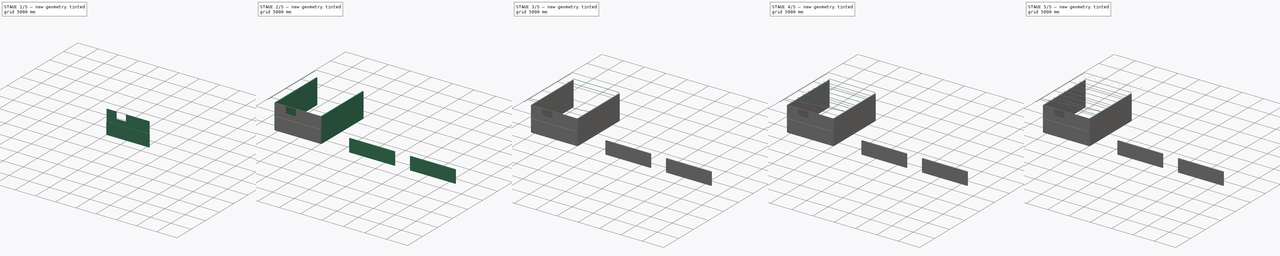
[diagram: build sequence overview — one tinted view per stage of 5, left to right]
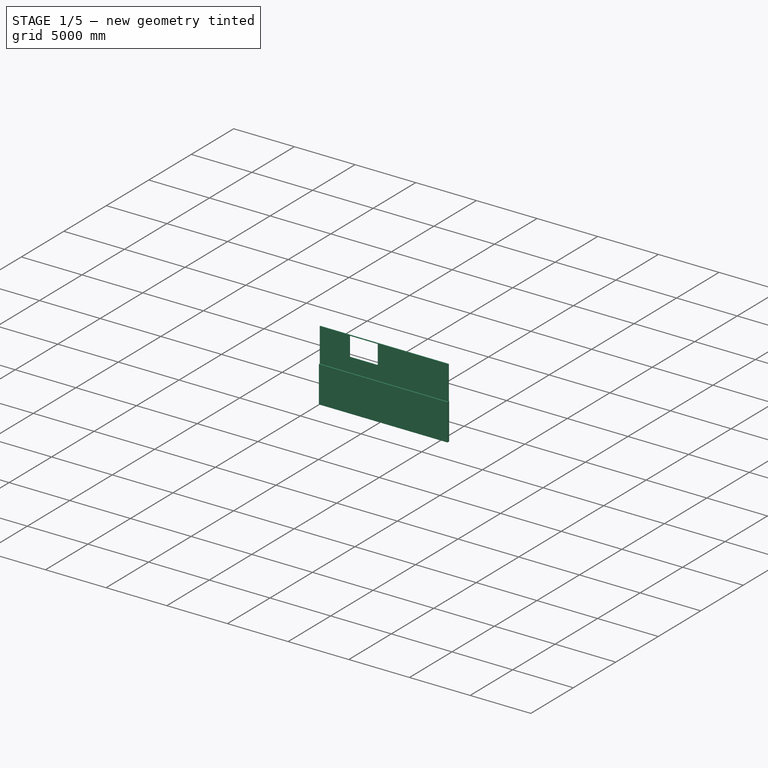
[diagram: stage 1 of 5 — iso view after this stage's code; geometry added in this stage tinted green]
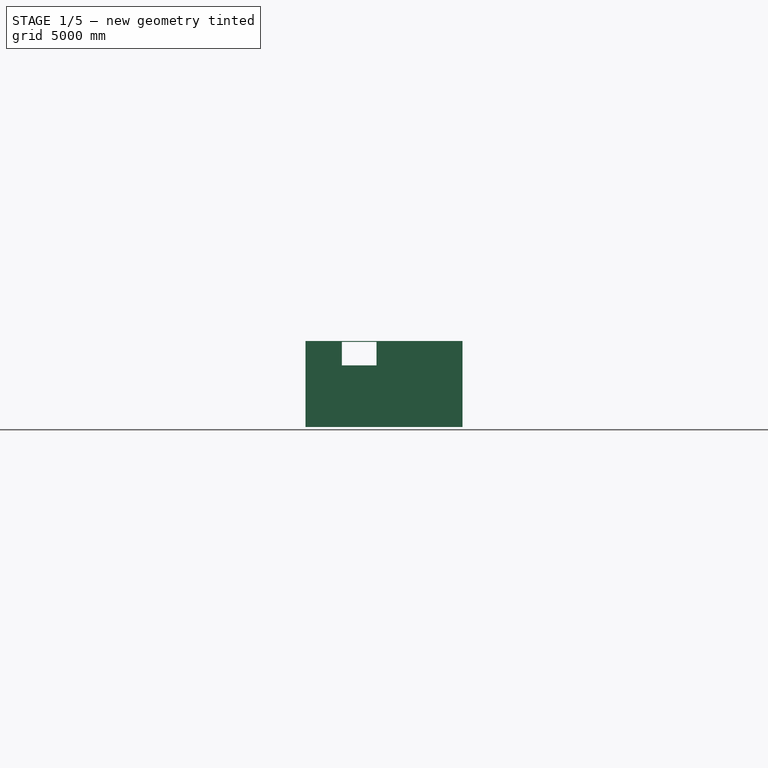
[diagram: stage 1 of 5 — front view after this stage's code; geometry added in this stage tinted green]
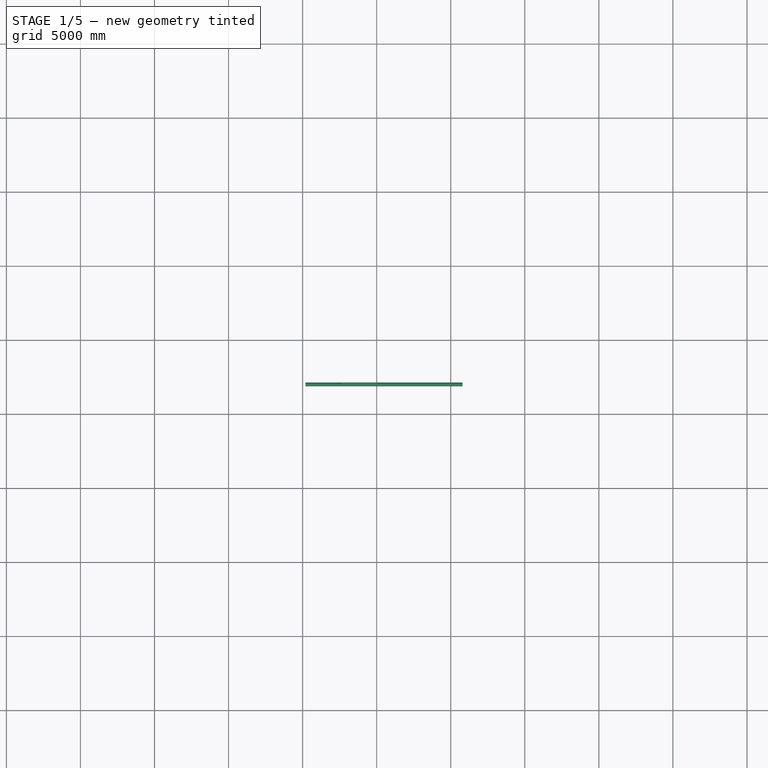
[diagram: stage 1 of 5 — top view after this stage's code; geometry added in this stage tinted green]
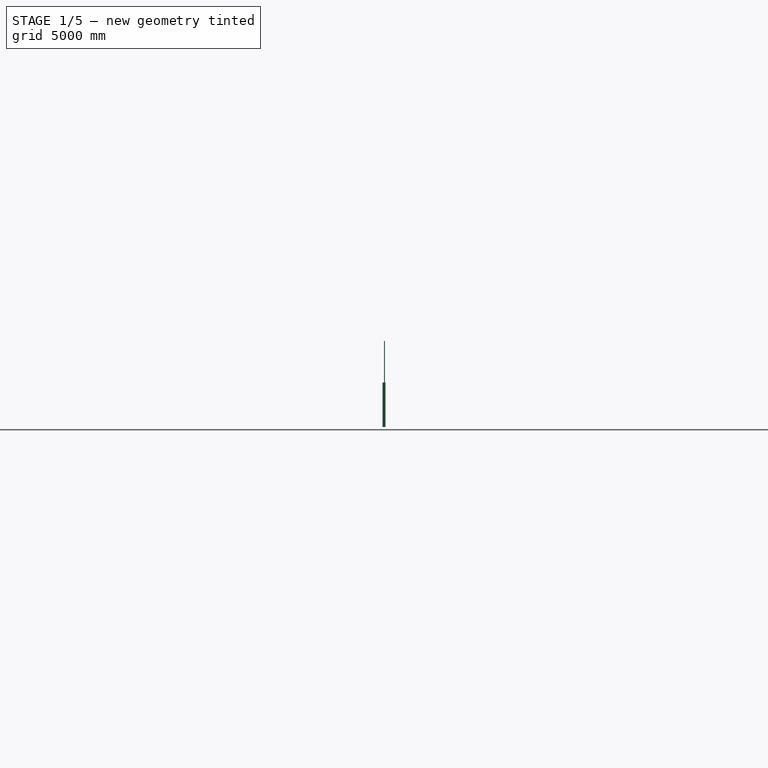
[diagram: stage 1 of 5 — right view after this stage's code; geometry added in this stage tinted green]
FCSTD DOCUMENT  (FreeCAD 0.17R11624 (Git))
Label: Dyimba Roof Tutorial
License: CreativeCommons Attribution
LicenseURL: http://creativecommons.org/licenses/by/4.0/
objects: Part::Part2DObjectPython×78, Part::Feature×41, Part::FeaturePython×20, App::DocumentObjectGroup×4, Part::Extrusion×3, Part::Mirroring×2, App::FeaturePython×1, Sketcher::SketchObject×1
note: 145 computed .brp shape members not serialized (recipe doc carries the construction recipe); baked Part::Feature solids carry a one-line shape summary decoded from their .brp

FEATURE [Part::Part2DObjectPython] Rectangle012  # Draft 2D object (typed FeaturePython)
  ChamferSize = 0
  Columns = 5
  FilletRadius = 0
  Height = 5800
  Length = 10600
  MakeFace = true
  Placement = pos=(195.002,2000,0) rot=(1,0,0;1.5708rad)
  Rows = 1
  Support = -> [Roof_Slab]
FEATURE [Part::Part2DObjectPython] Line062  # Draft 2D object (typed FeaturePython)
  ChamferSize = 0
  Closed = false
  End = (195.002,2000,0)
  FilletRadius = 0
  Length = 10600
  MakeFace = true
  Points = (2) [(10795,2000,0),(195.002,2000,0)]
  Start = (10795,2000,0)
  Subdivisions = 0
FEATURE [Part::FeaturePython] Wall002  # WARN: FeaturePython — macro-defined, semantics opaque (R4)
  Align = 2
  Base = -> Line062
  Face = 0
  Height = 3000
  HorizontalArea = 2.12e+06
  Length = 10600
  MoveWithHost = false
  Normal = (0,0,0)
  PerimeterLength = 21600
  Role = 1
  VerticalArea = 64800000
  Width = 200
FEATURE [Part::Part2DObjectPython] Clone2D  label="Clone of Line062 (2D)"  # Draft 2D object (typed FeaturePython)
  Objects = -> [Line062]
  Placement = pos=(17312.8,1e-12,0) rot=(0,0,1;0rad)
  Scale = (1,1,1)
FEATURE [Part::Part2DObjectPython] Clone2D001  label="Clone of Clone of Line062 (2D) (2D)"  # Draft 2D object (typed FeaturePython)
  Objects = -> [Clone2D]
  Placement = pos=(31507.4,2e-12,0) rot=(0,0,1;0rad)
  Scale = (1,1,1)
FEATURE [Part::FeaturePython] Wall003  # WARN: FeaturePython — macro-defined, semantics opaque (R4)
  Align = 0
  Base = -> Line062
  Face = 0
  Height = 5800
  HorizontalArea = 636000
  Length = 10600
  MoveWithHost = false
  Normal = (0,0,0)
  PerimeterLength = 21320
  Role = 1
  VerticalArea = 123656000
  Width = 60
FEATURE [Sketcher::SketchObject] Sketch
  ExternalGeometry = -> [Wall003]
  MapMode = 5
  Placement = pos=(0,2000,0) rot=(1,0,0;1.5708rad)
  sketch-geometry (107):
    g0: LineSegment StartX=195.002 StartY=5800 StartZ=0 EndX=10795 EndY=5800 EndZ=0
    g1: LineSegment StartX=10795 StartY=5800 StartZ=0 EndX=10795 EndY=0 EndZ=0
    g2: LineSegment StartX=10795 StartY=0 StartZ=0 EndX=195.002 EndY=0 EndZ=0
    g3: LineSegment StartX=195.002 StartY=0 StartZ=0 EndX=195.002 EndY=5800 EndZ=0
    g4: LineSegment [constr] StartX=255.002 StartY=5740 StartZ=0 EndX=10735 EndY=5740 EndZ=0
    g5: LineSegment [constr] StartX=10735 StartY=5740 StartZ=0 EndX=10735 EndY=60 EndZ=0
    g6: LineSegment [constr] StartX=10735 StartY=60 StartZ=0 EndX=255.002 EndY=60 EndZ=0
    g7: LineSegment [constr] StartX=255.002 StartY=60 StartZ=0 EndX=255.002 EndY=5740 EndZ=0
    g8: LineSegment [constr] StartX=2620 StartY=6357.65 StartZ=0 EndX=2620 EndY=-989.386 EndZ=0
    g9: LineSegment [constr] StartX=5015 StartY=6550.46 StartZ=0 EndX=5015 EndY=-943.782 EndZ=0
    g10: LineSegment [constr] StartX=7410 StartY=6563.84 StartZ=0 EndX=7410 EndY=-967.386 EndZ=0
    g11: LineSegment [constr] StartX=9805 StartY=6657.52 StartZ=0 EndX=9805 EndY=-933.17 EndZ=0
    g12: LineSegment [constr] StartX=-653.798 StartY=4123.84 StartZ=0 EndX=12219 EndY=4123.84 EndZ=0
    g13: LineSegment [constr] StartX=-651.823 StartY=2190 StartZ=0 EndX=12195.4 EndY=2190 EndZ=0
    g14: LineSegment StartX=2650 StartY=4093.84 StartZ=0 EndX=4985 EndY=4093.84 EndZ=0
    g15: LineSegment StartX=4985 StartY=4093.84 StartZ=0 EndX=4985 EndY=2220 EndZ=0
    g16: LineSegment StartX=4985 StartY=2220 StartZ=0 EndX=2650 EndY=2220 EndZ=0
    g17: LineSegment StartX=2650 StartY=2220 StartZ=0 EndX=2650 EndY=4093.84 EndZ=0
    g18: LineSegment StartX=5045 StartY=4093.84 StartZ=0 EndX=7380 EndY=4093.84 EndZ=0
    g19: LineSegment StartX=7380 StartY=4093.84 StartZ=0 EndX=7380 EndY=2220 EndZ=0
    g20: LineSegment StartX=7380 StartY=2220 StartZ=0 EndX=5045 EndY=2220 EndZ=0
    g21: LineSegment StartX=5045 StartY=2220 StartZ=0 EndX=5045 EndY=4093.84 EndZ=0
    g22: LineSegment StartX=7440 StartY=4093.84 StartZ=0 EndX=9775 EndY=4093.84 EndZ=0
    g23: LineSegment StartX=9775 StartY=4093.84 StartZ=0 EndX=9775 EndY=2220 EndZ=0
    g24: LineSegment StartX=9775 StartY=2220 StartZ=0 EndX=7440 EndY=2220 EndZ=0
    g25: LineSegment StartX=7440 StartY=2220 StartZ=0 EndX=7440 EndY=4093.84 EndZ=0
    g26: LineSegment StartX=9835 StartY=4093.84 StartZ=0 EndX=10735 EndY=4093.84 EndZ=0
    g27: LineSegment StartX=10735 StartY=4093.84 StartZ=0 EndX=10735 EndY=2220 EndZ=0
    g28: LineSegment StartX=10735 StartY=2220 StartZ=0 EndX=9835 EndY=2220 EndZ=0
    g29: LineSegment StartX=9835 StartY=2220 StartZ=0 EndX=9835 EndY=4093.84 EndZ=0
    g30: LineSegment StartX=9835 StartY=2160 StartZ=0 EndX=10735 EndY=2160 EndZ=0
    g31: LineSegment StartX=10735 StartY=2160 StartZ=0 EndX=10735 EndY=60 EndZ=0
    g32: LineSegment StartX=10735 StartY=60 StartZ=0 EndX=9835 EndY=60 EndZ=0
    g33: LineSegment StartX=9835 StartY=60 StartZ=0 EndX=9835 EndY=2160 EndZ=0
    g34: LineSegment StartX=7440 StartY=2160 StartZ=0 EndX=9775 EndY=2160 EndZ=0
    g35: LineSegment StartX=9775 StartY=2160 StartZ=0 EndX=9775 EndY=60 EndZ=0
    g36: LineSegment StartX=9775 StartY=60 StartZ=0 EndX=7440 EndY=60 EndZ=0
    g37: LineSegment StartX=7440 StartY=60 StartZ=0 EndX=7440 EndY=2160 EndZ=0
    g38: LineSegment StartX=5045 StartY=2160 StartZ=0 EndX=7380 EndY=2160 EndZ=0
    g39: LineSegment StartX=7380 StartY=2160 StartZ=0 EndX=7380 EndY=60 EndZ=0
    g40: LineSegment StartX=7380 StartY=60 StartZ=0 EndX=5045 EndY=60 EndZ=0
    g41: LineSegment StartX=5045 StartY=60 StartZ=0 EndX=5045 EndY=2160 EndZ=0
    g42: LineSegment StartX=2650 StartY=2160 StartZ=0 EndX=4985 EndY=2160 EndZ=0
    g43: LineSegment StartX=4985 StartY=2160 StartZ=0 EndX=4985 EndY=60 EndZ=0
    g44: LineSegment StartX=4985 StartY=60 StartZ=0 EndX=2650 EndY=60 EndZ=0
    g45: LineSegment StartX=2650 StartY=60 StartZ=0 EndX=2650 EndY=2160 EndZ=0
    g46: LineSegment StartX=255.002 StartY=2160 StartZ=0 EndX=2590 EndY=2160 EndZ=0
    g47: LineSegment StartX=2590 StartY=2160 StartZ=0 EndX=2590 EndY=60 EndZ=0
    g48: LineSegment StartX=2590 StartY=60 StartZ=0 EndX=255.002 EndY=60 EndZ=0
    g49: LineSegment StartX=255.002 StartY=60 StartZ=0 EndX=255.002 EndY=2160 EndZ=0
    g50: LineSegment StartX=255.002 StartY=5740 StartZ=0 EndX=2590 EndY=5740 EndZ=0
    g51: LineSegment StartX=2590 StartY=5740 StartZ=0 EndX=2590 EndY=4153.84 EndZ=0
    g52: LineSegment StartX=2590 StartY=4153.84 StartZ=0 EndX=255.002 EndY=4153.84 EndZ=0
    g53: LineSegment StartX=255.002 StartY=4153.84 StartZ=0 EndX=255.002 EndY=5740 EndZ=0
    g54: LineSegment StartX=2650 StartY=5740 StartZ=0 EndX=4985 EndY=5740 EndZ=0
    g55: LineSegment StartX=4985 StartY=5740 StartZ=0 EndX=4985 EndY=4153.84 EndZ=0
    g56: LineSegment StartX=4985 StartY=4153.84 StartZ=0 EndX=2650 EndY=4153.84 EndZ=0
    g57: LineSegment StartX=2650 StartY=4153.84 StartZ=0 EndX=2650 EndY=5740 EndZ=0
    g58: LineSegment StartX=5045 StartY=5740 StartZ=0 EndX=7380 EndY=5740 EndZ=0
    g59: LineSegment StartX=7380 StartY=5740 StartZ=0 EndX=7380 EndY=4153.84 EndZ=0
    g60: LineSegment StartX=7380 StartY=4153.84 StartZ=0 EndX=5045 EndY=4153.84 EndZ=0
    g61: LineSegment StartX=5045 StartY=4153.84 StartZ=0 EndX=5045 EndY=5740 EndZ=0
    g62: LineSegment StartX=7440 StartY=5740 StartZ=0 EndX=9775 EndY=5740 EndZ=0
    g63: LineSegment StartX=9775 StartY=5740 StartZ=0 EndX=9775 EndY=4153.84 EndZ=0
    g64: LineSegment StartX=9775 StartY=4153.84 StartZ=0 EndX=7440 EndY=4153.84 EndZ=0
    g65: LineSegment StartX=7440 StartY=4153.84 StartZ=0 EndX=7440 EndY=5740 EndZ=0
    g66: LineSegment StartX=9835 StartY=5740 StartZ=0 EndX=10735 EndY=5740 EndZ=0
    g67: LineSegment StartX=10735 StartY=5740 StartZ=0 EndX=10735 EndY=4153.84 EndZ=0
    g68: LineSegment StartX=10735 StartY=4153.84 StartZ=0 EndX=9835 EndY=4153.84 EndZ=0
    g69: LineSegment StartX=9835 StartY=4153.84 StartZ=0 EndX=9835 EndY=5740 EndZ=0
    g70: LineSegment StartX=255.002 StartY=4301.2 StartZ=0 EndX=255.002 EndY=2148.96 EndZ=0
    g71: LineSegment [constr] StartX=11927.7 StartY=4153.84 StartZ=0 EndX=-59.5544 EndY=4153.84 EndZ=0
    g72: LineSegment [constr] StartX=11929.1 StartY=4093.84 StartZ=0 EndX=-67.7115 EndY=4093.84 EndZ=0
    g73: LineSegment [constr] StartX=11274.9 StartY=4123.84 StartZ=0 EndX=11274.9 EndY=4093.84 EndZ=0
    g74: LineSegment [constr] StartX=11541.3 StartY=4093.84 StartZ=0 EndX=11541.3 EndY=4153.84 EndZ=0
    g75: LineSegment [constr] StartX=2590 StartY=6309.22 StartZ=0 EndX=2590 EndY=-287.647 EndZ=0
    g76: LineSegment [constr] StartX=2650 StartY=6262.3 StartZ=0 EndX=2650 EndY=-291.677 EndZ=0
    g77: LineSegment [constr] StartX=2590 StartY=6129.68 StartZ=0 EndX=2650 EndY=6129.68 EndZ=0
    g78: LineSegment [constr] StartX=11480.6 StartY=2220 StartZ=0 EndX=-461.742 EndY=2220 EndZ=0
    g79: LineSegment [constr] StartX=11534.1 StartY=2160 StartZ=0 EndX=-450.934 EndY=2160 EndZ=0
    g80: LineSegment [constr] StartX=4985 StartY=6877.7 StartZ=0 EndX=4985 EndY=-581.242 EndZ=0
    g81: LineSegment [constr] StartX=5045 StartY=6810.78 StartZ=0 EndX=5045 EndY=-581.242 EndZ=0
    g82: LineSegment [constr] StartX=7380 StartY=7319.33 StartZ=0 EndX=7380 EndY=-636.853 EndZ=0
    g83: LineSegment [constr] StartX=7440 StartY=7131.97 StartZ=0 EndX=7440 EndY=-642.174 EndZ=0
    g84: LineSegment [constr] StartX=9775 StartY=7024.91 StartZ=0 EndX=9775 EndY=-577.15 EndZ=0
    g85: LineSegment [constr] StartX=9835 StartY=6998.14 StartZ=0 EndX=9835 EndY=-587.37 EndZ=0
    g86: LineSegment [constr] StartX=2590 StartY=5951.83 StartZ=0 EndX=2620 EndY=5951.83 EndZ=0
    g87: LineSegment [constr] StartX=-223.951 StartY=2220 StartZ=0 EndX=-223.951 EndY=2160 EndZ=0
    g88: LineSegment [constr] StartX=-66.3773 StartY=2220 StartZ=0 EndX=-66.3773 EndY=2190 EndZ=0
    g89: LineSegment [constr] StartX=4985 StartY=-256.304 StartZ=0 EndX=5015 EndY=-256.304 EndZ=0
    g90: LineSegment [constr] StartX=5045 StartY=-423.457 StartZ=0 EndX=4985 EndY=-423.457 EndZ=0
    g91: LineSegment [constr] StartX=7380 StartY=-198.123 StartZ=0 EndX=7410 EndY=-198.123 EndZ=0
    g92: LineSegment [constr] StartX=7380 StartY=-332.886 StartZ=0 EndX=7440 EndY=-332.886 EndZ=0
    g93: LineSegment [constr] StartX=9775 StartY=-201.292 StartZ=0 EndX=9805 EndY=-201.292 EndZ=0
    g94: LineSegment [constr] StartX=9775 StartY=-290.458 StartZ=0 EndX=9835 EndY=-290.458 EndZ=0
    g95: LineSegment StartX=255.002 StartY=4093.84 StartZ=0 EndX=2590 EndY=4093.84 EndZ=0
    g96: LineSegment StartX=2590 StartY=4093.84 StartZ=0 EndX=2590 EndY=2220 EndZ=0
    g97: LineSegment StartX=2590 StartY=2220 StartZ=0 EndX=255.002 EndY=2220 EndZ=0
    g98: LineSegment StartX=255.002 StartY=2220 StartZ=0 EndX=255.002 EndY=4093.84 EndZ=0
    g99: LineSegment [constr] StartX=255.002 StartY=4939.15 StartZ=0 EndX=2590 EndY=4939.15 EndZ=0
    g100: LineSegment [constr] StartX=2650 StartY=4935.18 StartZ=0 EndX=4985 EndY=4935.18 EndZ=0
    g101: LineSegment [constr] StartX=5045 StartY=4913.61 StartZ=0 EndX=7380 EndY=4913.61 EndZ=0
    g102: LineSegment [constr] StartX=7440 StartY=4869.01 StartZ=0 EndX=9775 EndY=4869.01 EndZ=0
    g103: LineSegment [constr] StartX=9835 StartY=4493.82 StartZ=0 EndX=10735 EndY=4493.82 EndZ=0
    g104: LineSegment [constr] StartX=10036.3 StartY=2160 StartZ=0 EndX=10036.3 EndY=60 EndZ=0
    g105: LineSegment [constr] StartX=8176.45 StartY=4093.84 StartZ=0 EndX=8176.45 EndY=2220 EndZ=0
    g106: LineSegment [constr] StartX=8339.04 StartY=5740 StartZ=0 EndX=8339.04 EndY=3866.16 EndZ=0
  constraints (295):
    c: Coincident(g0,g1)
    c: Coincident(g1,g2)
    c: Coincident(g2,g3)
    c: Coincident(g3,g0)
    c: Horizontal(g0)
    c: Horizontal(g2)
    c: Vertical(g1)
    c: Vertical(g3)
    c: Coincident(g0,g-4)
    c: Coincident(g1,g-6)
    c: Coincident(g4,g5)
    c: Coincident(g5,g6)
    c: Coincident(g6,g7)
    c: Coincident(g7,g4)
    c: Horizontal(g4)
    c: Horizontal(g6)
    c: Vertical(g5)
    c: Vertical(g7)
    c: DistanceX(g0,g4) = 60
    c: DistanceY(g4,g0) = 60
    c: DistanceX(g4,g0) = 60
    c: DistanceY(g1,g5) = 60
    c: Vertical(g9)
    c: Vertical(g10)
    c: Vertical(g11)
    c: Horizontal(g12)
    c: Horizontal(g13)
    c: Coincident(g14,g15)
    c: Coincident(g15,g16)
    c: Coincident(g16,g17)
    c: Coincident(g17,g14)
    c: Horizontal(g14)
    c: Horizontal(g16)
    c: Vertical(g15)
    c: Vertical(g17)
    c: Coincident(g18,g19)
    c: Coincident(g19,g20)
    c: Coincident(g20,g21)
    c: Coincident(g21,g18)
    c: Horizontal(g18)
    c: Horizontal(g20)
    c: Vertical(g19)
    c: Vertical(g21)
    c: Coincident(g22,g23)
    c: Coincident(g23,g24)
    c: Coincident(g24,g25)
    c: Coincident(g25,g22)
    c: Horizontal(g22)
    c: Horizontal(g24)
    c: Vertical(g23)
    c: Vertical(g25)
    c: Coincident(g26,g27)
    c: Coincident(g27,g28)
    c: Coincident(g28,g29)
    c: Coincident(g29,g26)
    c: Horizontal(g26)
    c: Horizontal(g28)
    c: Vertical(g27)
    c: Vertical(g29)
    c: Coincident(g30,g31)
    c: Coincident(g31,g32)
    c: Coincident(g32,g33)
    c: Coincident(g33,g30)
    c: Horizontal(g30)
    c: Horizontal(g32)
    c: Vertical(g31)
    c: Vertical(g33)
    c: Coincident(g34,g35)
    c: Coincident(g35,g36)
    c: Coincident(g36,g37)
    c: Coincident(g37,g34)
    c: Horizontal(g34)
    c: Horizontal(g36)
    c: Vertical(g35)
    c: Vertical(g37)
    c: Coincident(g38,g39)
    c: Coincident(g39,g40)
    c: Coincident(g40,g41)
    c: Coincident(g41,g38)
    c: Horizontal(g38)
    c: Horizontal(g40)
    c: Vertical(g39)
    c: Vertical(g41)
    c: Coincident(g42,g43)
    c: Coincident(g43,g44)
    c: Coincident(g44,g45)
    c: Coincident(g45,g42)
    c: Horizontal(g42)
    c: Horizontal(g44)
    c: Vertical(g43)
    c: Vertical(g45)
    c: Coincident(g46,g47)
    c: Coincident(g47,g48)
    c: Coincident(g48,g49)
    c: Coincident(g49,g46)
    c: Horizontal(g46)
    c: Horizontal(g48)
    c: Vertical(g47)
    c: Vertical(g49)
    c: Coincident(g50,g51)
    c: Coincident(g51,g52)
    c: Coincident(g52,g53)
    c: Coincident(g53,g50)
    c: Horizontal(g50)
    c: Horizontal(g52)
    c: Vertical(g51)
    c: Vertical(g53)
    c: Coincident(g54,g55)
    c: Coincident(g55,g56)
    c: Coincident(g56,g57)
    c: Coincident(g57,g54)
    c: Horizontal(g54)
    c: Horizontal(g56)
    c: Vertical(g55)
    c: Vertical(g57)
    c: Coincident(g58,g59)
    c: Coincident(g59,g60)
    c: Coincident(g60,g61)
    c: Coincident(g61,g58)
    c: Horizontal(g58)
    c: Horizontal(g60)
    c: Vertical(g59)
    c: Vertical(g61)
    c: Coincident(g62,g63)
    c: Coincident(g63,g64)
    c: Coincident(g64,g65)
    c: Coincident(g65,g62)
    c: Horizontal(g62)
    c: Horizontal(g64)
    c: Vertical(g63)
    c: Vertical(g65)
    c: Coincident(g66,g67)
    c: Coincident(g67,g68)
    c: Coincident(g68,g69)
    c: Coincident(g69,g66)
    c: Horizontal(g66)
    c: Horizontal(g68)
    c: Vertical(g67)
    c: Vertical(g69)
    c: Vertical(g70)
    c: Coincident(g4,g50)
    c: Coincident(g4,g66)
    c: Coincident(g5,g31)
    c: Coincident(g6,g48)
    c: PointOnObject(g70,g7)
    c: PointOnObject(g54,g4)
    c: PointOnObject(g58,g4)
    c: PointOnObject(g62,g4)
    c: PointOnObject(g26,g5)
    c: PointOnObject(g44,g6)
    c: PointOnObject(g40,g6)
    c: PointOnObject(g36,g6)
    c: Horizontal(g71)
    c: Horizontal(g72)
    c: PointOnObject(g73,g12)
    c: PointOnObject(g73,g72)
    c: Vertical(g73)
    c: DistanceY(g73,g73) = 30
    c: PointOnObject(g74,g72)
    c: PointOnObject(g74,g71)
    c: Vertical(g74)
    c: DistanceY(g74,g74) = 60
    c: PointOnObject(g51,g71)
    c: PointOnObject(g56,g71)
    c: PointOnObject(g14,g72)
    c: PointOnObject(g60,g71)
    c: PointOnObject(g18,g72)
    c: PointOnObject(g64,g71)
    c: PointOnObject(g22,g72)
    c: PointOnObject(g26,g72)
    c: PointOnObject(g68,g71)
    c: Vertical(g76)
    c: PointOnObject(g77,g75)
    c: PointOnObject(g77,g76)
    c: Horizontal(g77)
    c: DistanceX(g77,g77) = 60
    c: PointOnObject(g51,g75)
    c: PointOnObject(g56,g76)
    c: PointOnObject(g14,g76)
    c: PointOnObject(g46,g75)
    c: PointOnObject(g42,g76)
    c: Horizontal(g78)
    c: Horizontal(g79)
    c: Vertical(g80)
    c: Vertical(g81)
    c: Vertical(g82)
    c: Vertical(g83)
    c: Vertical(g84)
    c: Vertical(g85)
    c: PointOnObject(g86,g75)
    c: PointOnObject(g86,g8)
    c: Horizontal(g86)
    c: DistanceX(g86,g86) = 30
    c: Vertical(g75)
    c: Vertical(g8)
    c: PointOnObject(g87,g78)
    c: PointOnObject(g87,g79)
    c: Vertical(g87)
    c: PointOnObject(g88,g78)
    c: PointOnObject(g88,g13)
    c: Vertical(g88)
    c: DistanceY(g87,g87) = 60
    c: DistanceY(g88,g88) = 30
    c: PointOnObject(g89,g80)
    c: PointOnObject(g89,g9)
    c: Horizontal(g89)
    c: DistanceX(g89,g89) = 30
    c: PointOnObject(g90,g81)
    c: PointOnObject(g90,g80)
    c: Horizontal(g90)
    c: DistanceX(g90,g90) = 60
    c: PointOnObject(g91,g82)
    c: PointOnObject(g91,g10)
    c: Horizontal(g91)
    c: PointOnObject(g92,g82)
    c: PointOnObject(g92,g83)
    c: Horizontal(g92)
    c: DistanceX(g91,g91) = 30
    c: DistanceX(g92,g92) = 60
    c: PointOnObject(g93,g84)
    c: PointOnObject(g93,g11)
    c: PointOnObject(g94,g84)
    c: PointOnObject(g94,g85)
    c: Horizontal(g94)
    c: Horizontal(g93)
    c: DistanceX(g93,g93) = 30
    c: DistanceX(g94,g94) = 60
    c: Coincident(g95,g96)
    c: Coincident(g96,g97)
    c: Coincident(g97,g98)
    c: Coincident(g98,g95)
    c: Horizontal(g95)
    c: Horizontal(g97)
    c: Vertical(g96)
    c: Vertical(g98)
    c: PointOnObject(g95,g72)
    c: PointOnObject(g95,g75)
    c: PointOnObject(g97,g78)
    c: PointOnObject(g97,g7)
    c: PointOnObject(g46,g79)
    c: PointOnObject(g16,g78)
    c: PointOnObject(g42,g79)
    c: PointOnObject(g55,g80)
    c: PointOnObject(g60,g81)
    c: PointOnObject(g14,g80)
    c: PointOnObject(g18,g81)
    c: PointOnObject(g42,g80)
    c: PointOnObject(g20,g78)
    c: PointOnObject(g38,g79)
    c: PointOnObject(g38,g81)
    c: PointOnObject(g59,g82)
    c: PointOnObject(g18,g82)
    c: PointOnObject(g64,g83)
    c: PointOnObject(g22,g83)
    c: PointOnObject(g38,g82)
    c: PointOnObject(g24,g78)
    c: PointOnObject(g34,g79)
    c: PointOnObject(g34,g83)
    c: PointOnObject(g63,g84)
    c: PointOnObject(g68,g85)
    c: PointOnObject(g22,g84)
    c: PointOnObject(g26,g85)
    c: PointOnObject(g34,g84)
    c: PointOnObject(g28,g78)
    c: PointOnObject(g30,g79)
    c: PointOnObject(g30,g85)
    c: PointOnObject(g99,g53)
    c: PointOnObject(g99,g51)
    c: Horizontal(g99)
    c: PointOnObject(g100,g57)
    c: PointOnObject(g100,g55)
    c: Horizontal(g100)
    c: PointOnObject(g101,g61)
    c: PointOnObject(g101,g59)
    c: Horizontal(g101)
    c: PointOnObject(g102,g65)
    c: PointOnObject(g102,g63)
    c: Horizontal(g102)
    c: PointOnObject(g103,g69)
    c: PointOnObject(g103,g67)
    c: Horizontal(g103)
    c: DistanceX(g103,g103) = 900  'Door Width'
    c: Equal(g102,g101)
    c: Equal(g102,g100)
    c: Equal(g102,g99)
    c: PointOnObject(g104,g30)
    c: PointOnObject(g104,g32)
    c: Vertical(g104)
    c: PointOnObject(g105,g22)
    c: PointOnObject(g105,g24)
    c: Vertical(g105)
    c: PointOnObject(g106,g62)
    c: Vertical(g106)
    c: Equal(g105,g106)
    c: DistanceY(g104,g104) = 2100  'Door Height'
FEATURE [Part::FeaturePython] Window  # WARN: FeaturePython — macro-defined, semantics opaque (R4)
  Area = 0
  Base = -> Sketch
  Height = 0
  HoleDepth = 0
  HoleWire = 12
  HorizontalArea = 3.0936e+06
  LouvreSpacing = 0
  LouvreWidth = 0
  MoveWithHost = true
  Normal = (0,1,0)
  Opening = 0
  PerimeterLength = 0
  Preset = 0
  Role = 1
  VerticalArea = 1.28104e+08
  Width = 60
  WindowParts = Mullion | Frame | Wire0,Wire16,Wire1,Wire2,Wire3,Wire4,Wire5,Wire6,Wire7,Wire8,Wire9,Wire14,Wire13,Wire12,Wire11,Wire10 | 60.0 | 0.0 | glass 1 | Glass panel | Wire1 | 20.0 | 20.0 | glass 2 | Glass panel | Wire2 | 20.0 | 20.0 | glass 3 | Glass panel | Wire16 | 20.0 | 20.0 | glass 4 | Glass panel | Wire14 | 20.0 | 20.0 | glass 5 | Glass panel | Wire13 | 20.0 | 20.0 | glass 6 | Glass panel | Wire12 | 20.0 | 20.0 | glass 7 | Glass panel | Wire11 | 20.0 | 20.0 | glass 8 | Glass panel | Wire10 | 20.0 | 20.0 | glass 9 | Glass panel | Wire9 | 20.0 | 20.0 | glass 10 | Glass panel | Wire8 | 20.0 | 20.0 | glass 11 | Glass panel | Wire7 | 20.0 | 20.0 | glass 12 | Glass panel | Wire6 | 20.0 | 20.0 | glass 13 | Glass panel | Wire5 | 20.0 | 20.0 | glass 14 | Glass panel | Wire3 | 20.0 | 20.0 | glass 15 | Glass panel | Wire4 | 20.0 | 20.0
  WindowParts1 = 0
FEATURE [Part::FeaturePython] Wall006  # WARN: FeaturePython — macro-defined, semantics opaque (R4)
  Align = 2
  Base = -> Wall003
  Face = 0
  Height = 3000
  HorizontalArea = 776100
  Length = 0
  MoveWithHost = false
  Normal = (0,0,0)
  PerimeterLength = 0
  Role = 1
  Subtractions = -> [Window]
  VerticalArea = 1.16439e+08
  Width = 200
FEATURE [Part::FeaturePython] Wall007  # WARN: FeaturePython — macro-defined, semantics opaque (R4)
  Align = 2
  Base = -> Wall002
  Face = 0
  Height = 3000
  HorizontalArea = 2.12e+06
  Length = 0
  MoveWithHost = false
  Normal = (0,0,0)
  PerimeterLength = 21600
  Role = 1
  Subtractions = -> [Window]
  VerticalArea = 64800000
  Width = 200
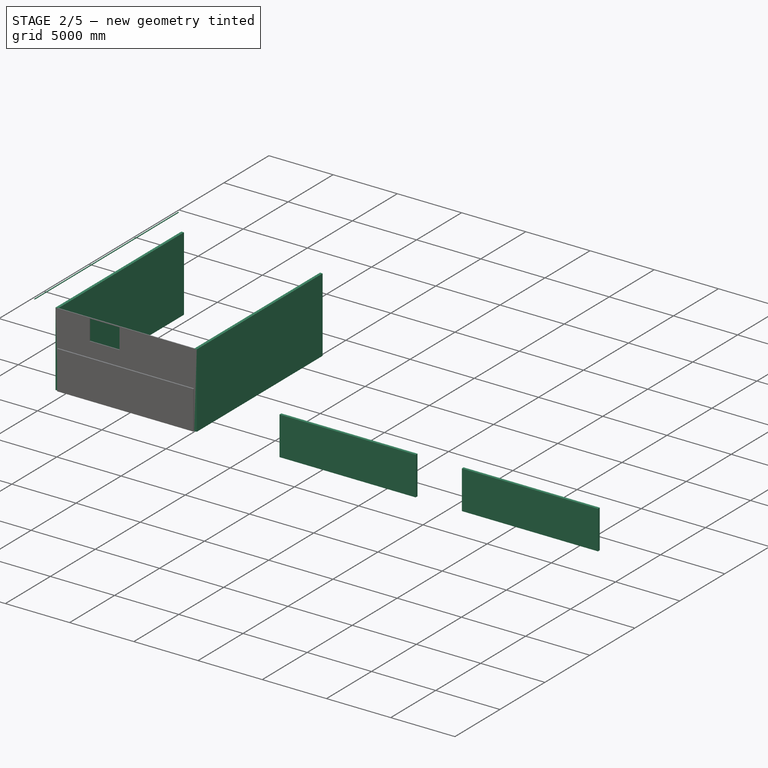
[diagram: stage 2 of 5 — iso view after this stage's code; geometry added in this stage tinted green]
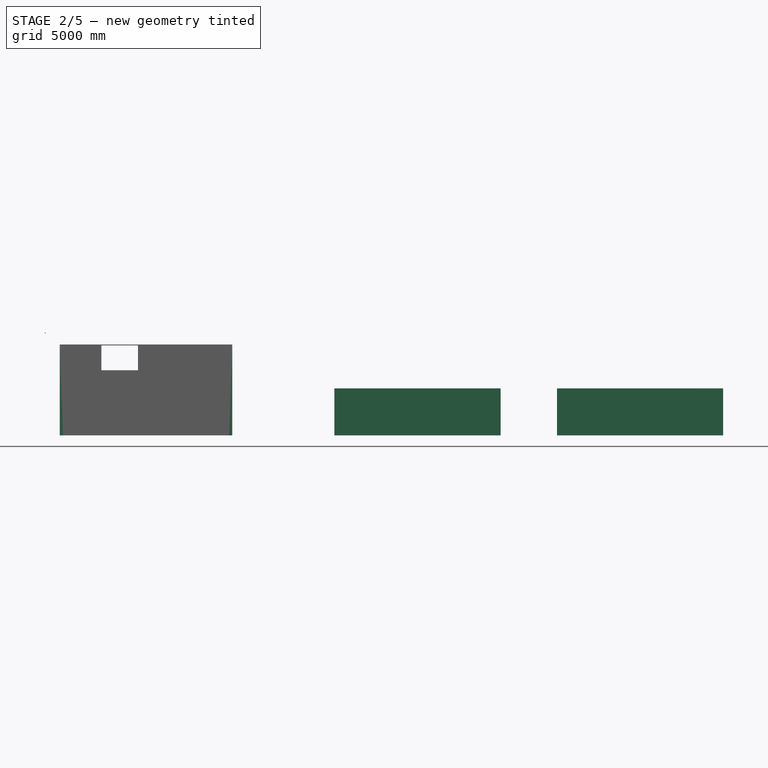
[diagram: stage 2 of 5 — front view after this stage's code; geometry added in this stage tinted green]
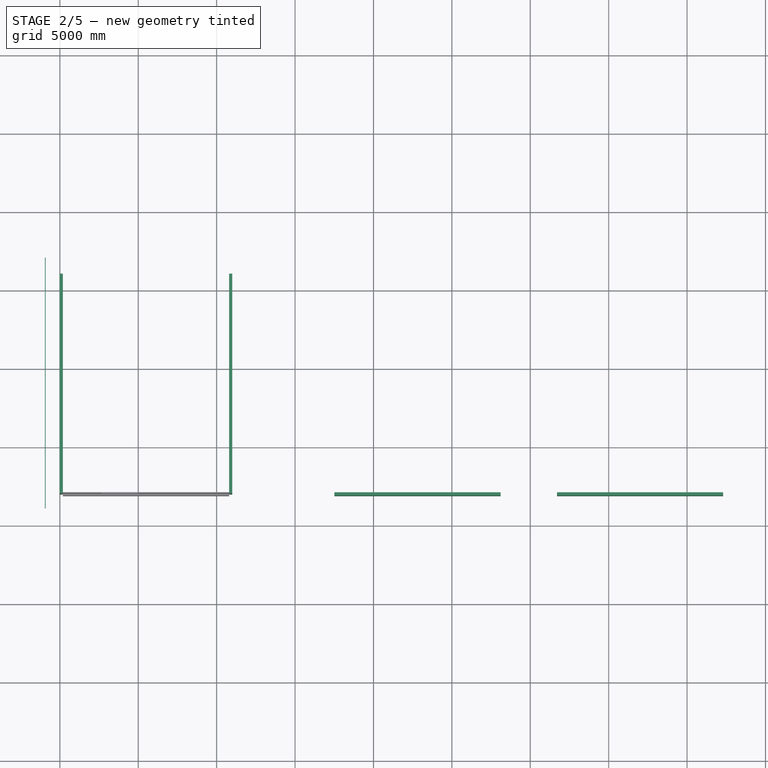
[diagram: stage 2 of 5 — top view after this stage's code; geometry added in this stage tinted green]
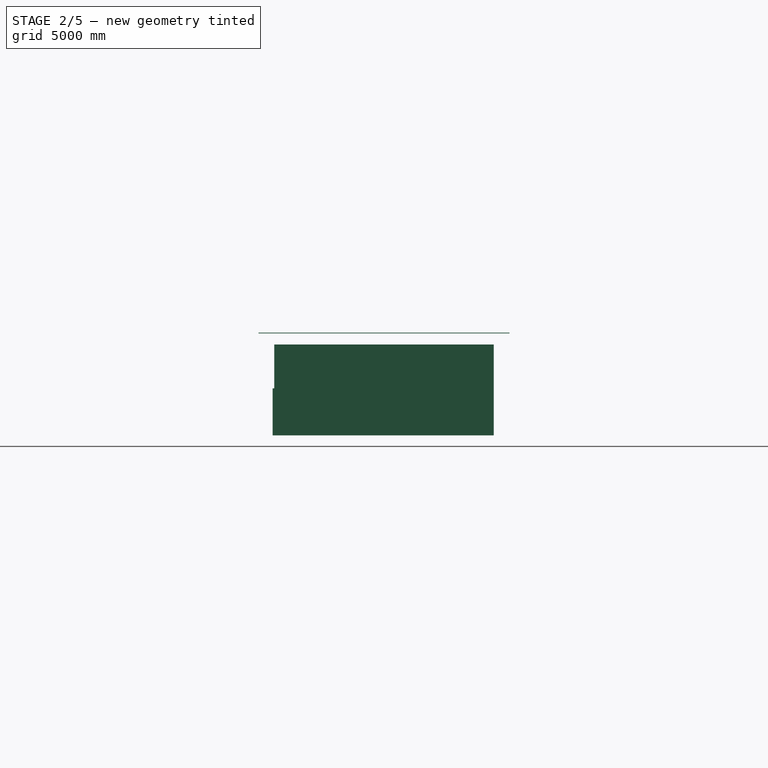
[diagram: stage 2 of 5 — right view after this stage's code; geometry added in this stage tinted green]
FEATURE [Part::Feature] mirror002  label="Mirror of Pipe002"
  Placement = pos=(0,1731.25,0) rot=(0,0,1;0rad)
  shape: bbox 14010 x 865.3 x 1501 mm, 21 faces (baked)
FEATURE [Part::Feature] Pipe002
  Placement = pos=(0,1731.25,0) rot=(0,0,1;0rad)
  shape: bbox 14010 x 865.3 x 1501 mm, 21 faces (baked)
FEATURE [Part::Feature] mirror003  label="Mirror of Pipe003"
  Placement = pos=(0,3462.5,0) rot=(0,0,1;0rad)
  shape: bbox 14010 x 865.3 x 1501 mm, 21 faces (baked)
FEATURE [Part::Feature] Pipe003
  Placement = pos=(0,3462.5,0) rot=(0,0,1;0rad)
  shape: bbox 14010 x 865.3 x 1501 mm, 21 faces (baked)
FEATURE [Part::Feature] Pipe004
  Placement = pos=(0,5193.75,0) rot=(0,0,1;0rad)
  shape: bbox 14010 x 865.3 x 1501 mm, 21 faces (baked)
FEATURE [Part::Feature] mirror004  label="Mirror of Pipe004"
  Placement = pos=(0,5193.75,0) rot=(0,0,1;0rad)
  shape: bbox 14010 x 865.3 x 1501 mm, 21 faces (baked)
FEATURE [Part::Feature] Pipe005
  Placement = pos=(0,6925,0) rot=(0,0,1;0rad)
  shape: bbox 14010 x 865.3 x 1501 mm, 21 faces (baked)
FEATURE [Part::Feature] mirror005  label="Mirror of Pipe005"
  Placement = pos=(0,6925,0) rot=(0,0,1;0rad)
  shape: bbox 14010 x 865.3 x 1501 mm, 21 faces (baked)
FEATURE [Part::Feature] Pipe006
  Placement = pos=(0,8656.25,0) rot=(0,0,1;0rad)
  shape: bbox 14010 x 865.3 x 1501 mm, 21 faces (baked)
FEATURE [Part::Feature] mirror006  label="Mirror of Pipe006"
  Placement = pos=(0,8656.25,0) rot=(0,0,1;0rad)
  shape: bbox 14010 x 865.3 x 1501 mm, 21 faces (baked)
FEATURE [Part::Feature] mirror007  label="Mirror of Pipe007"
  Placement = pos=(0,10387.5,0) rot=(0,0,1;0rad)
  shape: bbox 14010 x 865.3 x 1501 mm, 21 faces (baked)
FEATURE [Part::Feature] Pipe007
  Placement = pos=(0,10387.5,0) rot=(0,0,1;0rad)
  shape: bbox 14010 x 865.3 x 1501 mm, 21 faces (baked)
FEATURE [Part::Feature] mirror008  label="Mirror of Pipe008"
  Placement = pos=(0,12118.8,0) rot=(0,0,1;0rad)
  shape: bbox 14010 x 865.3 x 1501 mm, 21 faces (baked)
FEATURE [Part::Feature] Pipe008
  Placement = pos=(0,12118.8,0) rot=(0,0,1;0rad)
  shape: bbox 14010 x 865.3 x 1501 mm, 21 faces (baked)
FEATURE [Part::Feature] Extrusion002
  Placement = pos=(-2.29e-10,-1940.62,3.221e-09) rot=(0,0,1;0rad)
  shape: bbox 14000 x 50 x 1050 mm, 6 faces (baked)
FEATURE [Part::Feature] Extrusion003
  Placement = pos=(2.22e-10,1731.25,-3.111e-09) rot=(0,0,1;0rad)
  shape: bbox 14000 x 50 x 1050 mm, 6 faces (baked)
FEATURE [Part::Feature] Extrusion004
  Placement = pos=(2.22e-10,3462.5,-3.111e-09) rot=(0,0,1;0rad)
  shape: bbox 14000 x 50 x 1050 mm, 6 faces (baked)
FEATURE [Part::Feature] Extrusion005
  Placement = pos=(2.22e-10,5193.75,-3.111e-09) rot=(0,0,1;0rad)
  shape: bbox 14000 x 50 x 1050 mm, 6 faces (baked)
FEATURE [Part::Feature] Extrusion006
  Placement = pos=(2.22e-10,6925,-3.111e-09) rot=(0,0,1;0rad)
  shape: bbox 14000 x 50 x 1050 mm, 6 faces (baked)
FEATURE [Part::Feature] Extrusion007
  Placement = pos=(2.22e-10,8656.25,-3.111e-09) rot=(0,0,1;0rad)
  shape: bbox 14000 x 50 x 1050 mm, 6 faces (baked)
FEATURE [Part::Feature] Extrusion008
  Placement = pos=(2.22e-10,10387.5,-3.111e-09) rot=(0,0,1;0rad)
  shape: bbox 14000 x 50 x 1050 mm, 6 faces (baked)
FEATURE [Part::Feature] Extrusion009
  Placement = pos=(2.22e-10,12118.8,-3.111e-09) rot=(0,0,1;0rad)
  shape: bbox 14000 x 50 x 1050 mm, 6 faces (baked)
FEATURE [Part::Feature] Extrusion010
  Placement = pos=(2.2e-10,14059.4,-3.096e-09) rot=(0,0,1;0rad)
  shape: bbox 14000 x 50 x 1050 mm, 6 faces (baked)
FEATURE [Part::Part2DObjectPython] Rectangle009  # Draft 2D object (typed FeaturePython)
  ChamferSize = 0
  Columns = 1
  FilletRadius = 0
  Height = 50
  Length = 50
  MakeFace = true
  Placement = pos=(-955.125,1000,6503.56) rot=(0.99873,-0.035624,0.035624;1.57207rad)
  Rows = 1
FEATURE [Part::Extrusion] Extrusion011
  Base = -> Rectangle009
  Dir = (0,16000,0)
  DirMode = 0
  FaceMakerClass = Part::FaceMakerBullseye
  LengthFwd = 0
  LengthRev = 0
  Solid = true
  Symmetric = false
FEATURE [App::DocumentObjectGroup] Group  label="Structure"
  Group = -> [Extrusion001,Extrusion002,Extrusion003,Extrusion004,Extrusion005,Extrusion006,Extrusion007,Extrusion008,Extrusion009,Extrusion010,Extrusion,Clone,Clone001,Clone002,Clone003,Clone004,Clone005,Clone006,Clone007]
FEATURE [App::DocumentObjectGroup] Group002
FEATURE [App::DocumentObjectGroup] Group001  label="Roof "
  Group = -> [Group002,Roof_Slab,Rectangle,Line031,Line032,Line033,Line034,Line035,Rectangle003,Panel001,Rectangle004,Rectangle005,Line048,Rectangle006,Line050,Line051,Line052,Line053,Line054,Line055,Line056,Line057,Line058,Rectangle007,mirror,mirror001,mirror002,Pipe002,mirror003,Pipe003,Pipe004,mirror004,Pipe005,mirror005,Pipe006,mirror006,mirror007,Pipe007,mirror008,Pipe008,Group,Extrusion011,Extrusion012,+15 more]
FEATURE [Part::Feature] Roof_Slab001
  Placement = pos=(0,0,-7900) rot=(0,0,1;0rad)
  shape: bbox 11000 x 14000 x 200 mm, 10 faces (baked)
FEATURE [Part::Part2DObjectPython] Line059  # Draft 2D object (typed FeaturePython)
  ChamferSize = 0
  Closed = false
  End = (10995,2000,-200)
  FilletRadius = 0
  Length = 6000
  MakeFace = true
  Points = (2) [(10995,2000,5800),(10995,2000,-200)]
  Start = (10995,2000,5800)
  Subdivisions = 0
FEATURE [Part::Part2DObjectPython] Rectangle011  # Draft 2D object (typed FeaturePython)
  ChamferSize = 0
  Columns = 1
  FilletRadius = 0
  Height = 14000
  Length = 11000
  MakeFace = true
  Placement = pos=(-4.99805,2000,0) rot=(0,0,1;0rad)
  Rows = 1
  Support = -> [Roof_Slab001]
FEATURE [Part::Part2DObjectPython] Line060  # Draft 2D object (typed FeaturePython)
  ChamferSize = 0
  Closed = false
  End = (-4.99805,16000,0)
  FilletRadius = 0
  Length = 14000
  MakeFace = true
  Points = (2) [(-4.99805,2000,0),(-4.99805,16000,0)]
  Start = (-4.99805,2000,0)
  Subdivisions = 0
FEATURE [Part::Part2DObjectPython] Line061  # Draft 2D object (typed FeaturePython)
  ChamferSize = 0
  Closed = false
  End = (10995,16000,0)
  FilletRadius = 0
  Length = 14000
  MakeFace = true
  Points = (2) [(10995,2000,0),(10995,16000,0)]
  Start = (10995,2000,0)
  Subdivisions = 0
FEATURE [Part::FeaturePython] Wall  # WARN: FeaturePython — macro-defined, semantics opaque (R4)
  Align = 1
  Base = -> Line061
  Face = 0
  Height = 5800
  HorizontalArea = 2800000
  Length = 14000
  MoveWithHost = false
  Normal = (0,0,0)
  PerimeterLength = 28400
  Role = 1
  VerticalArea = 1.6472e+08
  Width = 200
FEATURE [Part::FeaturePython] Wall001  # WARN: FeaturePython — macro-defined, semantics opaque (R4)
  Align = 0
  Base = -> Line060
  Face = 0
  Height = 5800
  HorizontalArea = 2800000
  Length = 14000
  MoveWithHost = false
  Normal = (0,0,0)
  PerimeterLength = 28400
  Role = 1
  VerticalArea = 1.6472e+08
  Width = 200
FEATURE [Part::FeaturePython] Wall004  # WARN: FeaturePython — macro-defined, semantics opaque (R4)
  Align = 2
  Base = -> Clone2D
  Face = 0
  Height = 3000
  HorizontalArea = 2120000
  Length = 10600
  MoveWithHost = false
  Normal = (0,0,0)
  PerimeterLength = 21600
  Role = 1
  VerticalArea = 64800000
  Width = 200
FEATURE [Part::FeaturePython] Wall005  # WARN: FeaturePython — macro-defined, semantics opaque (R4)
  Align = 2
  Base = -> Clone2D001
  Face = 0
  Height = 3000
  HorizontalArea = 2120000
  Length = 10600
  MoveWithHost = false
  Normal = (0,0,0)
  PerimeterLength = 21600
  Role = 1
  VerticalArea = 64800000
  Width = 200
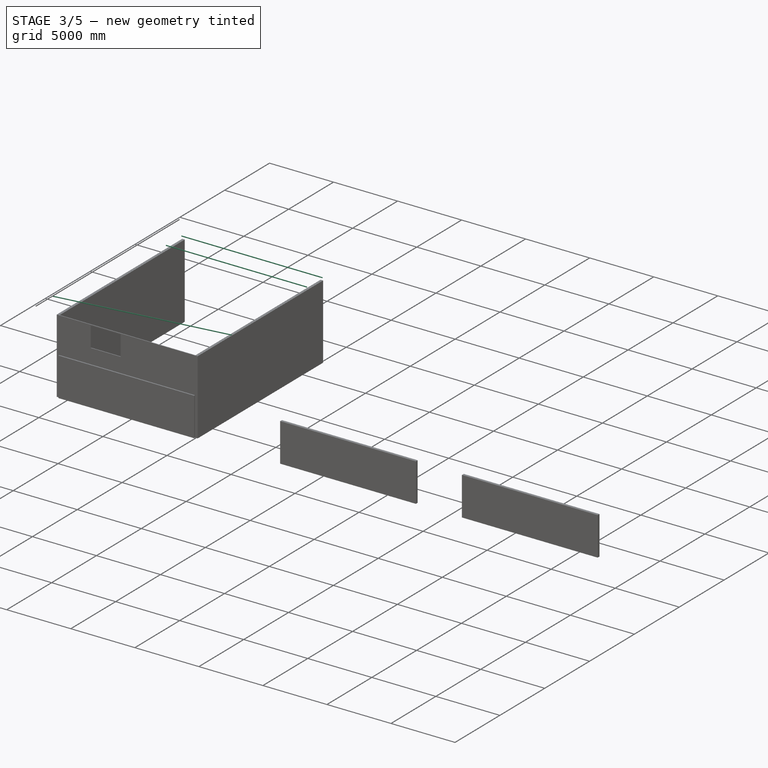
[diagram: stage 3 of 5 — iso view after this stage's code; geometry added in this stage tinted green]
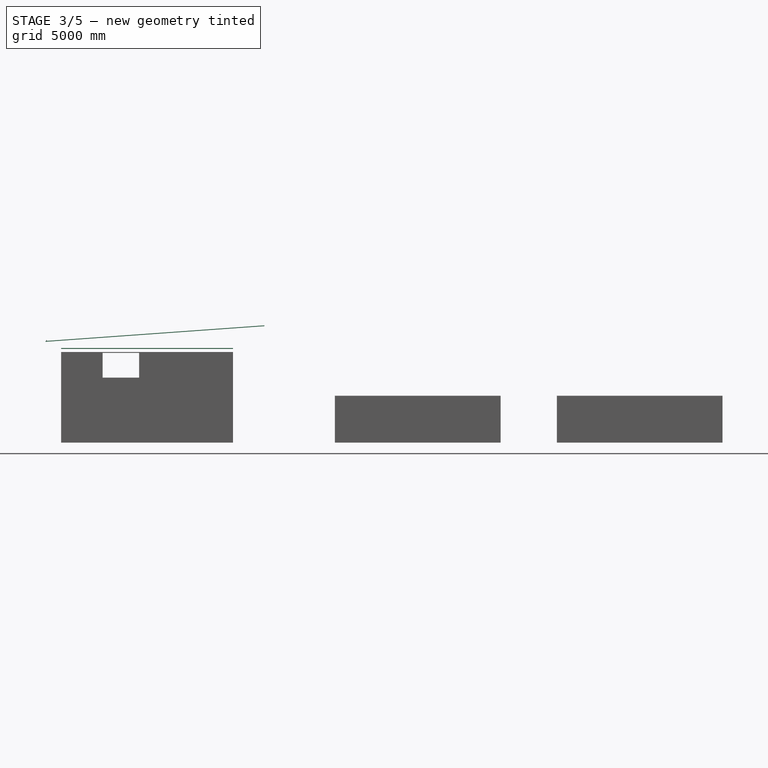
[diagram: stage 3 of 5 — front view after this stage's code; geometry added in this stage tinted green]
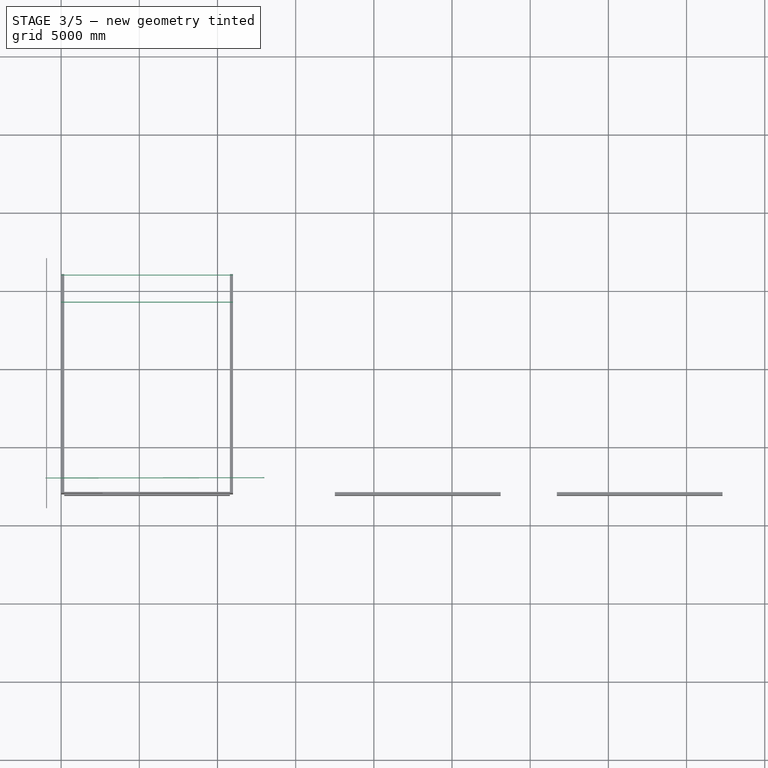
[diagram: stage 3 of 5 — top view after this stage's code; geometry added in this stage tinted green]
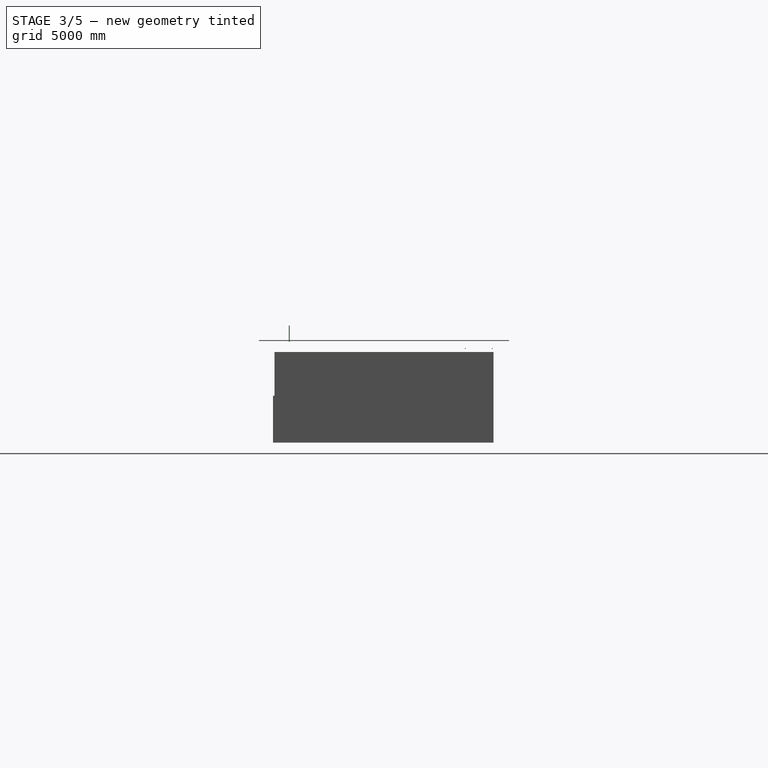
[diagram: stage 3 of 5 — right view after this stage's code; geometry added in this stage tinted green]
FEATURE [Part::Feature] Roof_Slab
  shape: bbox 11000 x 14000 x 200 mm, 10 faces (baked)
FEATURE [Part::Part2DObjectPython] Line  # Draft 2D object (typed FeaturePython)
  ChamferSize = 0
  Closed = false
  End = (-2831.29,16000,6000)
  FilletRadius = 0
  Length = 2826.29
  MakeFace = true
  Points = (2) [(-4.99805,16000,6000),(-2831.29,16000,6000)]
  Start = (-4.99805,16000,6000)
  Subdivisions = 0
  Support = -> [Roof_Slab]
FEATURE [Part::Part2DObjectPython] Line001  # Draft 2D object (typed FeaturePython)
  ChamferSize = 0
  Closed = false
  End = (-2831.29,17000,6000)
  FilletRadius = 0
  Length = 2826.29
  MakeFace = true
  Points = (2) [(-4.99805,17000,6000),(-2831.29,17000,6000)]
  Start = (-4.99805,17000,6000)
  Subdivisions = 0
FEATURE [Part::Part2DObjectPython] Line002  # Draft 2D object (typed FeaturePython)
  ChamferSize = 0
  Closed = false
  End = (-4.99805,19238,6000)
  FilletRadius = 0
  Length = 3238.04
  MakeFace = true
  Points = (2) [(-4.99805,16000,6000),(-4.99805,19238,6000)]
  Start = (-4.99805,16000,6000)
  Subdivisions = 0
FEATURE [Part::Part2DObjectPython] Line003  # Draft 2D object (typed FeaturePython)
  ChamferSize = 0
  Closed = false
  End = (-1005,19238,6000)
  FilletRadius = 0
  Length = 3238.04
  MakeFace = true
  Points = (2) [(-1005,16000,6000),(-1005,19238,6000)]
  Start = (-1005,16000,6000)
  Subdivisions = 0
FEATURE [Part::Part2DObjectPython] Line004  # Draft 2D object (typed FeaturePython)
  ChamferSize = 0
  Closed = false
  End = (10995,19674,6000)
  FilletRadius = 0
  Length = 3674.03
  MakeFace = true
  Points = (2) [(10995,16000,6000),(10995,19674,6000)]
  Start = (10995,16000,6000)
  Subdivisions = 0
FEATURE [Part::Part2DObjectPython] Line005  # Draft 2D object (typed FeaturePython)
  ChamferSize = 0
  Closed = false
  End = (12995,19674,6000)
  FilletRadius = 0
  Length = 20523.5
  MakeFace = true
  Points = (2) [(12995,-849.435,6000),(12995,19674,6000)]
  Start = (12995,-849.435,6000)
  Subdivisions = 0
FEATURE [Part::Part2DObjectPython] Line006  # Draft 2D object (typed FeaturePython)
  ChamferSize = 0
  Closed = false
  End = (14102.1,2000,6000)
  FilletRadius = 0
  Length = 3107.1
  MakeFace = true
  Points = (2) [(10995,2000,6000),(14102.1,2000,6000)]
  Start = (10995,2000,6000)
  Subdivisions = 0
FEATURE [Part::Part2DObjectPython] Line007  # Draft 2D object (typed FeaturePython)
  ChamferSize = 0
  Closed = false
  End = (14102.1,1000,6000)
  FilletRadius = 0
  Length = 3107.1
  MakeFace = true
  Points = (2) [(10995,1000,6000),(14102.1,1000,6000)]
  Start = (10995,1000,6000)
  Subdivisions = 0
FEATURE [Part::Part2DObjectPython] Rectangle  # Draft 2D object (typed FeaturePython)
  ChamferSize = 0
  Columns = 1
  FilletRadius = 0
  Height = 16000
  Length = 14000
  MakeFace = false
  Placement = pos=(-1005,1000,6000) rot=(0,0,1;0rad)
  Rows = 1
FEATURE [Part::Part2DObjectPython] Line008  # Draft 2D object (typed FeaturePython)
  ChamferSize = 0
  Closed = false
  End = (10845,2000,6000)
  FilletRadius = 0
  Length = 150
  MakeFace = true
  Points = (2) [(10845,2150,6000),(10845,2000,6000)]
  Start = (10845,2150,6000)
  Subdivisions = 0
FEATURE [Part::Part2DObjectPython] Line009  # Draft 2D object (typed FeaturePython)
  ChamferSize = 0
  Closed = false
  End = (10995,2150,6000)
  FilletRadius = 0
  Length = 150
  MakeFace = true
  Points = (2) [(10845,2150,6000),(10995,2150,6000)]
  Start = (10845,2150,6000)
  Subdivisions = 0
FEATURE [Part::Part2DObjectPython] Line010  # Draft 2D object (typed FeaturePython)
  ChamferSize = 0
  Closed = false
  End = (10995,2075,6000)
  FilletRadius = 0
  Length = 150
  MakeFace = true
  Points = (2) [(10845,2075,6000),(10995,2075,6000)]
  Start = (10845,2075,6000)
  Subdivisions = 0
FEATURE [Part::Part2DObjectPython] Line011  # Draft 2D object (typed FeaturePython)
  ChamferSize = 0
  Closed = false
  End = (10920,2000,6000)
  FilletRadius = 0
  Length = 150
  MakeFace = true
  Points = (2) [(10920,2150,6000),(10920,2000,6000)]
  Start = (10920,2150,6000)
  Subdivisions = 0
FEATURE [Part::Part2DObjectPython] Line012  # Draft 2D object (typed FeaturePython)
  ChamferSize = 0
  Closed = false
  End = (145.002,16000,6000)
  FilletRadius = 0
  Length = 150
  MakeFace = true
  Placement = pos=(-10850,13850,0) rot=(0,0,1;0rad)
  Points = (2) [(10845,2150,6000),(10995,2150,6000)]
  Start = (-4.99805,16000,6000)
  Subdivisions = 0
FEATURE [Part::Part2DObjectPython] Line013  # Draft 2D object (typed FeaturePython)
  ChamferSize = 0
  Closed = false
  End = (70.002,15850,6000)
  FilletRadius = 0
  Length = 150
  MakeFace = true
  Placement = pos=(-10850,13850,0) rot=(0,0,1;0rad)
  Points = (2) [(10920,2150,6000),(10920,2000,6000)]
  Start = (70.002,16000,6000)
  Subdivisions = 0
FEATURE [Part::Part2DObjectPython] Line014  # Draft 2D object (typed FeaturePython)
  ChamferSize = 0
  Closed = false
  End = (145.002,15925,6000)
  FilletRadius = 0
  Length = 150
  MakeFace = true
  Placement = pos=(-10850,13850,0) rot=(0,0,1;0rad)
  Points = (2) [(10845,2075,6000),(10995,2075,6000)]
  Start = (-4.99805,15925,6000)
  Subdivisions = 0
FEATURE [Part::Part2DObjectPython] Line015  # Draft 2D object (typed FeaturePython)
  ChamferSize = 0
  Closed = false
  End = (-4.99805,15850,6000)
  FilletRadius = 0
  Length = 150
  MakeFace = true
  Placement = pos=(-10850,13850,0) rot=(0,0,1;0rad)
  Points = (2) [(10845,2150,6000),(10845,2000,6000)]
  Start = (-4.99805,16000,6000)
  Subdivisions = 0
FEATURE [Part::Part2DObjectPython] Rectangle001  # Draft 2D object (typed FeaturePython)
  ChamferSize = 0
  Columns = 1
  FilletRadius = 0
  Height = 13850
  Length = 10850
  MakeFace = true
  Placement = pos=(70.002,2075,6000) rot=(0,0,1;0rad)
  Rows = 16
FEATURE [Part::Part2DObjectPython] Line016  # Draft 2D object (typed FeaturePython)
  ChamferSize = 0
  Closed = false
  End = (14102.1,16000,6000)
  FilletRadius = 0
  Length = 3107.1
  MakeFace = true
  Placement = pos=(0,14000,0) rot=(0,0,1;0rad)
  Points = (2) [(10995,2000,6000),(14102.1,2000,6000)]
  Start = (10995,16000,6000)
  Subdivisions = 0
FEATURE [Part::Part2DObjectPython] Line017  # Draft 2D object (typed FeaturePython)
  ChamferSize = 0
  Closed = false
  End = (14102.1,2000,6000)
  FilletRadius = 0
  Length = 14000
  MakeFace = true
  Points = (2) [(14102.1,16000,6000),(14102.1,2000,6000)]
  Start = (14102.1,16000,6000)
  Subdivisions = 0
FEATURE [Part::Part2DObjectPython] Line018  # Draft 2D object (typed FeaturePython)
  ChamferSize = 0
  Closed = false
  End = (10995,9000,6000)
  FilletRadius = 0
  Length = 3107.1
  MakeFace = true
  Points = (2) [(14102.1,9000,6000),(10995,9000,6000)]
  Start = (14102.1,9000,6000)
  Subdivisions = 0
FEATURE [Part::Part2DObjectPython] Line019  # Draft 2D object (typed FeaturePython)
  ChamferSize = 0
  Closed = false
  End = (12548.6,16000,6000)
  FilletRadius = 0
  Length = 7000
  MakeFace = true
  Points = (2) [(12548.6,9000,6000),(12548.6,16000,6000)]
  Start = (12548.6,9000,6000)
  Subdivisions = 0
FEATURE [Part::Part2DObjectPython] Line020  # Draft 2D object (typed FeaturePython)
  ChamferSize = 0
  Closed = false
  End = (14102.1,12500,6000)
  FilletRadius = 0
  Length = 1553.55
  MakeFace = true
  Points = (2) [(12548.6,12500,6000),(14102.1,12500,6000)]
  Start = (12548.6,12500,6000)
  Subdivisions = 0
FEATURE [Part::Part2DObjectPython] Line021  # Draft 2D object (typed FeaturePython)
  ChamferSize = 0
  Closed = false
  End = (13325.3,16000,6000)
  FilletRadius = 0
  Length = 3500
  MakeFace = true
  Points = (2) [(13325.3,12500,6000),(13325.3,16000,6000)]
  Start = (13325.3,12500,6000)
  Subdivisions = 0
FEATURE [Part::Part2DObjectPython] Line022  # Draft 2D object (typed FeaturePython)
  ChamferSize = 0
  Closed = false
  End = (12548.6,14250,6000)
  FilletRadius = 0
  Length = 776.774
  MakeFace = true
  Points = (2) [(13325.3,14250,6000),(12548.6,14250,6000)]
  Start = (13325.3,14250,6000)
  Subdivisions = 0
FEATURE [Part::Part2DObjectPython] Line023  # Draft 2D object (typed FeaturePython)
  ChamferSize = 0
  Closed = false
  End = (14102.1,5500,6000)
  FilletRadius = 0
  Length = 1553.55
  MakeFace = true
  Placement = pos=(0,-7000,0) rot=(0,0,1;0rad)
  Points = (2) [(12548.6,12500,6000),(14102.1,12500,6000)]
  Start = (12548.6,5500,6000)
  Subdivisions = 0
FEATURE [Part::Part2DObjectPython] Line024  # Draft 2D object (typed FeaturePython)
  ChamferSize = 0
  Closed = false
  End = (13325.3,9000,6000)
  FilletRadius = 0
  Length = 3500
  MakeFace = true
  Placement = pos=(0,-7000,0) rot=(0,0,1;0rad)
  Points = (2) [(13325.3,12500,6000),(13325.3,16000,6000)]
  Start = (13325.3,5500,6000)
  Subdivisions = 0
FEATURE [Part::Part2DObjectPython] Line025  # Draft 2D object (typed FeaturePython)
  ChamferSize = 0
  Closed = false
  End = (12548.6,7250,6000)
  FilletRadius = 0
  Length = 776.774
  MakeFace = true
  Placement = pos=(0,-7000,0) rot=(0,0,1;0rad)
  Points = (2) [(13325.3,14250,6000),(12548.6,14250,6000)]
  Start = (13325.3,7250,6000)
  Subdivisions = 0
FEATURE [Part::Part2DObjectPython] Line026  # Draft 2D object (typed FeaturePython)
  ChamferSize = 0
  Closed = false
  End = (12548.6,9000,6000)
  FilletRadius = 0
  Length = 7000
  MakeFace = true
  Placement = pos=(0,-7000,0) rot=(0,0,1;0rad)
  Points = (2) [(12548.6,9000,6000),(12548.6,16000,6000)]
  Start = (12548.6,2000,6000)
  Subdivisions = 0
FEATURE [Part::Part2DObjectPython] Line027  # Draft 2D object (typed FeaturePython)
  ChamferSize = 0
  Closed = false
  End = (13325.3,5500,6000)
  FilletRadius = 0
  Length = 3500
  MakeFace = true
  Placement = pos=(0,-10500,0) rot=(0,0,1;0rad)
  Points = (2) [(13325.3,12500,6000),(13325.3,16000,6000)]
  Start = (13325.3,2000,6000)
  Subdivisions = 0
FEATURE [Part::Part2DObjectPython] Line028  # Draft 2D object (typed FeaturePython)
  ChamferSize = 0
  Closed = false
  End = (12548.6,3750,6000)
  FilletRadius = 0
  Length = 776.774
  MakeFace = true
  Placement = pos=(0,-10500,0) rot=(0,0,1;0rad)
  Points = (2) [(13325.3,14250,6000),(12548.6,14250,6000)]
  Start = (13325.3,3750,6000)
  Subdivisions = 0
FEATURE [Part::Part2DObjectPython] Line029  # Draft 2D object (typed FeaturePython)
  ChamferSize = 0
  Closed = false
  End = (12548.6,10750,6000)
  FilletRadius = 0
  Length = 776.774
  MakeFace = true
  Placement = pos=(-5e-08,-3500,0) rot=(0,0,1;0rad)
  Points = (2) [(13325.3,14250,6000),(12548.6,14250,6000)]
  Start = (13325.3,10750,6000)
  Subdivisions = 0
FEATURE [Part::Part2DObjectPython] Line030  # Draft 2D object (typed FeaturePython)
  ChamferSize = 0
  Closed = false
  End = (13325.3,12500,6000)
  FilletRadius = 0
  Length = 3500
  MakeFace = true
  Placement = pos=(-5e-08,-3500,0) rot=(0,0,1;0rad)
  Points = (2) [(13325.3,12500,6000),(13325.3,16000,6000)]
  Start = (13325.3,9000,6000)
  Subdivisions = 0
FEATURE [App::FeaturePython] Dimension  # Draft dimension (typed FeaturePython)
  Diameter = false
  Dimline = (12174.6,14174.1,6000)
  Direction = (0,0,0)
  Distance = 1750
  End = (12548.6,14250,6000)
  Normal = (0,0,1)
  Start = (12548.6,12500,6000)
FEATURE [Part::Part2DObjectPython] Rectangle002  # Draft 2D object (typed FeaturePython)
  ChamferSize = 0
  Columns = 1
  FilletRadius = 0
  Height = 50
  Length = 50
  MakeFace = true
  Placement = pos=(10995,2050,6000) rot=(0.57735,0.57735,0.57735;2.0944rad)
  Rows = 1
FEATURE [Part::Extrusion] Extrusion
  Base = -> Rectangle002
  Dir = (-11000,0,0)
  DirMode = 0
  FaceMakerClass = Part::FaceMakerBullseye
  LengthFwd = 0
  LengthRev = 0
  Solid = true
  Symmetric = false
FEATURE [Part::FeaturePython] Clone006  label="Clone of Extrusion006"  # Draft clone (typed FeaturePython)
  AttacherType = Attacher::AttachEngine3D
  Objects = -> [Extrusion]
  Placement = pos=(0,12118.8,0) rot=(0,0,1;0rad)
  Scale = (1,1,1)
FEATURE [Part::FeaturePython] Clone007  label="Clone of Extrusion007"  # Draft clone (typed FeaturePython)
  AttacherType = Attacher::AttachEngine3D
  Objects = -> [Extrusion]
  Placement = pos=(0,13850,0) rot=(0,0,1;0rad)
  Scale = (1,1,1)
FEATURE [Part::Feature] Extrusion012
  Placement = pos=(800.191,0,57.1565) rot=(0,0,1;0rad)
  shape: bbox 53.44 x 16000 x 53.44 mm, 6 faces (baked)
FEATURE [Part::Feature] Extrusion013
  Placement = pos=(1675.19,0,119.656) rot=(0,0,1;0rad)
  shape: bbox 53.44 x 16000 x 53.44 mm, 6 faces (baked)
FEATURE [Part::Feature] Extrusion014
  Placement = pos=(2550.19,0,182.156) rot=(0,0,1;0rad)
  shape: bbox 53.44 x 16000 x 53.44 mm, 6 faces (baked)
FEATURE [Part::Feature] Extrusion016
  Placement = pos=(3425.19,1.5537e-08,244.656) rot=(0,0,1;0rad)
  shape: bbox 53.44 x 16000 x 53.44 mm, 6 faces (baked)
FEATURE [Part::Feature] Extrusion017
  Placement = pos=(4300.19,1.5537e-08,307.156) rot=(0,0,1;0rad)
  shape: bbox 53.44 x 16000 x 53.44 mm, 6 faces (baked)
FEATURE [Part::Feature] Extrusion018
  Placement = pos=(5175.19,1.5537e-08,369.656) rot=(0,0,1;0rad)
  shape: bbox 53.44 x 16000 x 53.44 mm, 6 faces (baked)
FEATURE [Part::Feature] Extrusion019
  Placement = pos=(6050.19,3.1074e-08,432.156) rot=(0,0,1;0rad)
  shape: bbox 53.44 x 16000 x 53.44 mm, 6 faces (baked)
FEATURE [Part::Feature] Extrusion021
  Placement = pos=(10425.2,4.6611e-08,744.656) rot=(0,0,1;0rad)
  shape: bbox 53.44 x 16000 x 53.44 mm, 6 faces (baked)
FEATURE [Part::Feature] Extrusion022
  Placement = pos=(9550.19,4.6611e-08,682.156) rot=(0,0,1;0rad)
  shape: bbox 53.44 x 16000 x 53.44 mm, 6 faces (baked)
FEATURE [Part::Feature] Extrusion023
  Placement = pos=(8675.19,4.6611e-08,619.656) rot=(0,0,1;0rad)
  shape: bbox 53.44 x 16000 x 53.44 mm, 6 faces (baked)
FEATURE [Part::Feature] Extrusion024
  Placement = pos=(7800.19,3.1074e-08,557.156) rot=(0,0,1;0rad)
  shape: bbox 53.44 x 16000 x 53.44 mm, 6 faces (baked)
FEATURE [Part::Feature] Extrusion025
  Placement = pos=(6925.19,3.1074e-08,494.656) rot=(0,0,1;0rad)
  shape: bbox 53.44 x 16000 x 53.44 mm, 6 faces (baked)
FEATURE [Part::Feature] Extrusion026
  Placement = pos=(13850.4,-25,989.313) rot=(0,0,1;0rad)
  shape: bbox 53.44 x 16000 x 53.44 mm, 6 faces (baked)
FEATURE [Part::Feature] Extrusion027
  Placement = pos=(13050.2,7.7684e-08,932.156) rot=(0,0,1;0rad)
  shape: bbox 53.44 x 16000 x 53.44 mm, 6 faces (baked)
FEATURE [Part::Feature] Extrusion028
  Placement = pos=(12175.2,7.7684e-08,869.656) rot=(0,0,1;0rad)
  shape: bbox 53.44 x 16000 x 53.44 mm, 6 faces (baked)
FEATURE [Part::Feature] Extrusion029
  Placement = pos=(11300.2,7.7684e-08,807.156) rot=(0,0,1;0rad)
  shape: bbox 53.44 x 16000 x 53.44 mm, 6 faces (baked)
FEATURE [Part::Part2DObjectPython] Rectangle010  # Draft 2D object (typed FeaturePython)
  ChamferSize = 0
  Columns = 1
  FilletRadius = 0
  Height = 16200.2
  Length = 14235.9
  MakeFace = true
  Placement = pos=(-1108.41,924.9,6542.74) rot=(0,-1,0;0.071307rad)
  Rows = 1
FEATURE [Part::FeaturePython] Panel001  # WARN: FeaturePython — macro-defined, semantics opaque (R4)
  Area = 2.30624e+08
  Base = -> Rectangle010
  FaceMaker = 0
  HorizontalArea = 0
  Length = 0
  MoveWithHost = false
  Normal = (0,0,0)
  PerimeterLength = 0
  Role = 0
  Sheets = 1
  Thickness = 10
  VerticalArea = 0
  WaveDirection = 0
  WaveHeight = 0
  WaveLength = 0
  WaveType = 0
  Width = 0
FEATURE [Part::Part2DObjectPython] Rectangle008  # Draft 2D object (typed FeaturePython)
  ChamferSize = 0
  Columns = 1
  FilletRadius = 0
  Height = 50
  Length = 50
  MakeFace = true
  Placement = pos=(12998.6,2915.63,7450.13) rot=(0.56313,0.56313,0.604788;2.05373rad)
  Rows = 1
  Support = -> [Panel001]
FEATURE [Part::Extrusion] Extrusion001
  Base = -> Rectangle008
  Dir = (-14000,-3e-12,-1000)
  DirMode = 0
  FaceMakerClass = Part::FaceMakerBullseye
  LengthFwd = 0
  LengthRev = 0
  Solid = true
  Symmetric = false
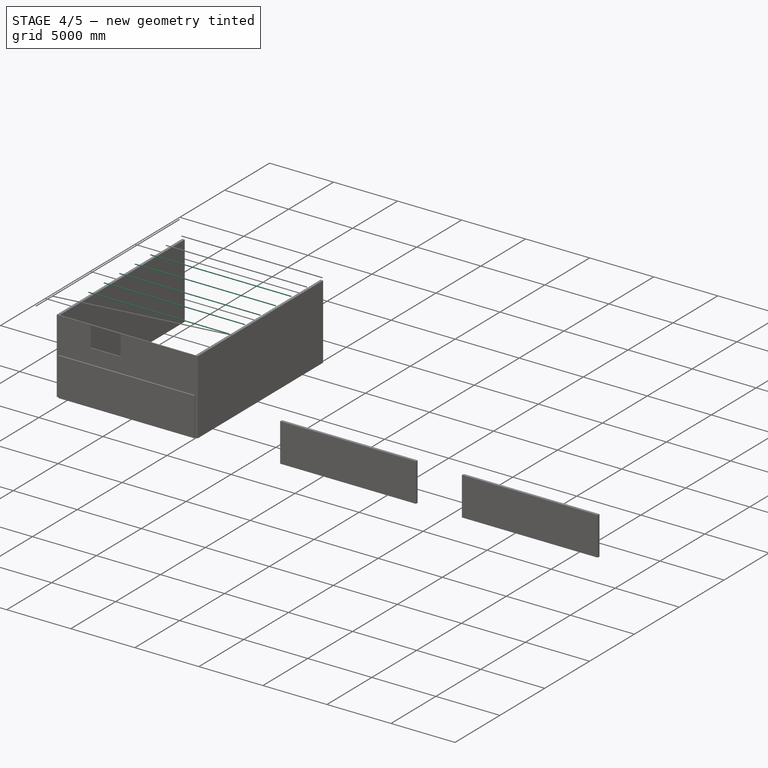
[diagram: stage 4 of 5 — iso view after this stage's code; geometry added in this stage tinted green]
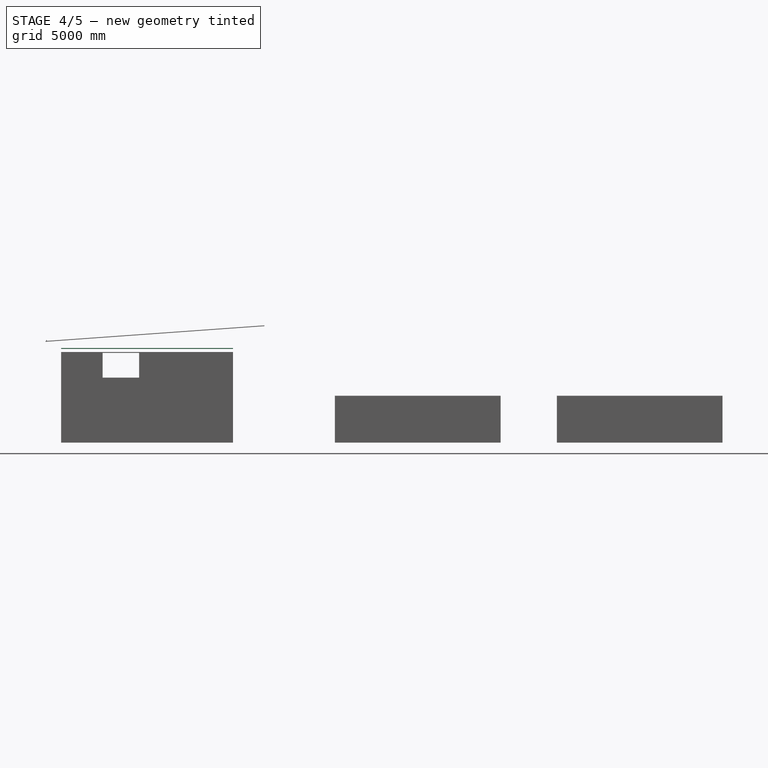
[diagram: stage 4 of 5 — front view after this stage's code; geometry added in this stage tinted green]
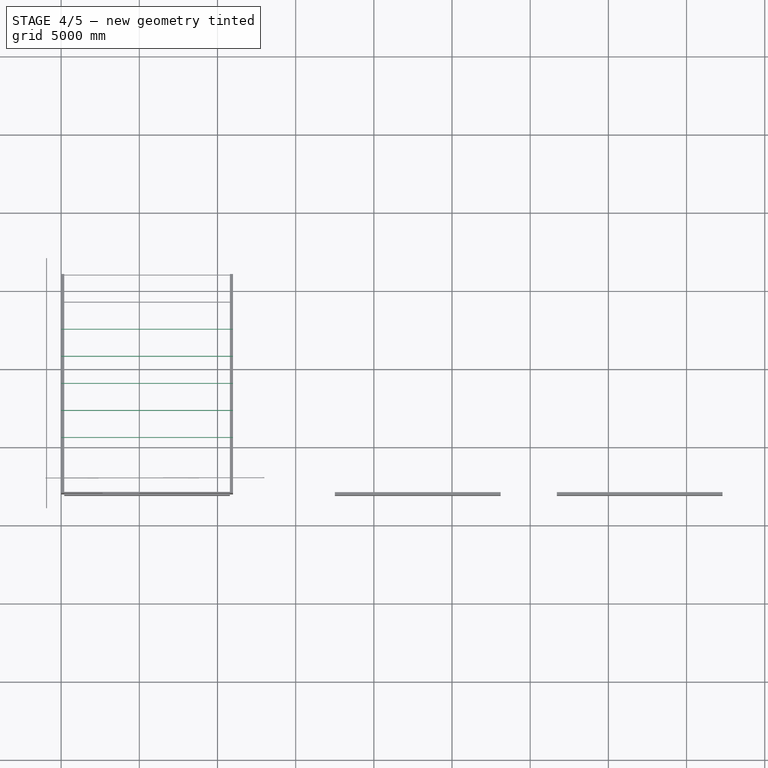
[diagram: stage 4 of 5 — top view after this stage's code; geometry added in this stage tinted green]
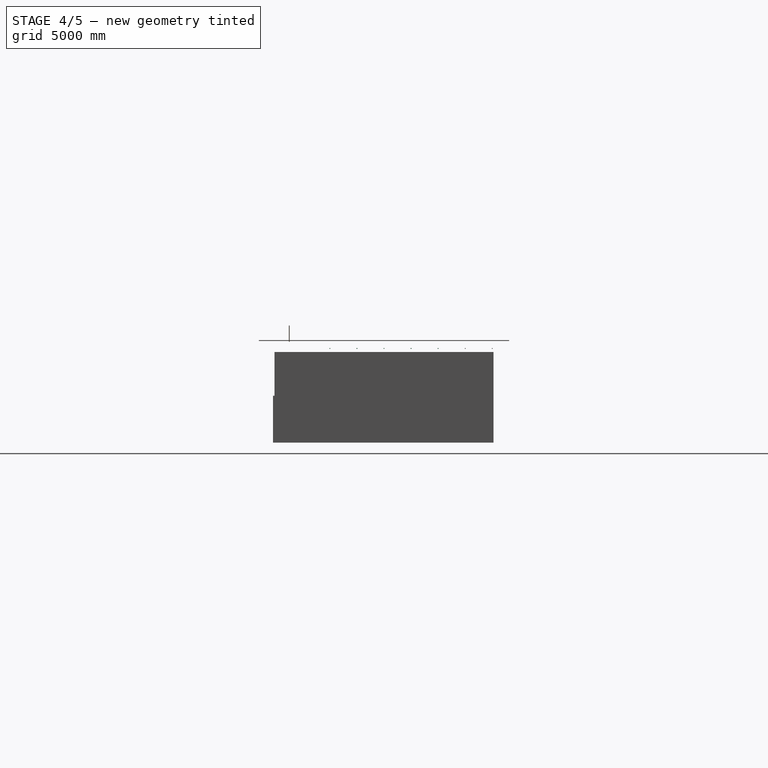
[diagram: stage 4 of 5 — right view after this stage's code; geometry added in this stage tinted green]
FEATURE [Part::FeaturePython] Clone001  label="Clone of Extrusion001"  # Draft clone (typed FeaturePython)
  AttacherType = Attacher::AttachEngine3D
  Objects = -> [Extrusion]
  Placement = pos=(0,3462.5,0) rot=(0,0,1;0rad)
  Scale = (1,1,1)
FEATURE [Part::FeaturePython] Clone002  label="Clone of Extrusion002"  # Draft clone (typed FeaturePython)
  AttacherType = Attacher::AttachEngine3D
  Objects = -> [Extrusion]
  Placement = pos=(0,5193.75,0) rot=(0,0,1;0rad)
  Scale = (1,1,1)
FEATURE [Part::FeaturePython] Clone003  label="Clone of Extrusion003"  # Draft clone (typed FeaturePython)
  AttacherType = Attacher::AttachEngine3D
  Objects = -> [Extrusion]
  Placement = pos=(0,6925,0) rot=(0,0,1;0rad)
  Scale = (1,1,1)
FEATURE [Part::FeaturePython] Clone004  label="Clone of Extrusion004"  # Draft clone (typed FeaturePython)
  AttacherType = Attacher::AttachEngine3D
  Objects = -> [Extrusion]
  Placement = pos=(0,8656.25,0) rot=(0,0,1;0rad)
  Scale = (1,1,1)
FEATURE [Part::FeaturePython] Clone005  label="Clone of Extrusion005"  # Draft clone (typed FeaturePython)
  AttacherType = Attacher::AttachEngine3D
  Objects = -> [Extrusion]
  Placement = pos=(0,10387.5,0) rot=(0,0,1;0rad)
  Scale = (1,1,1)
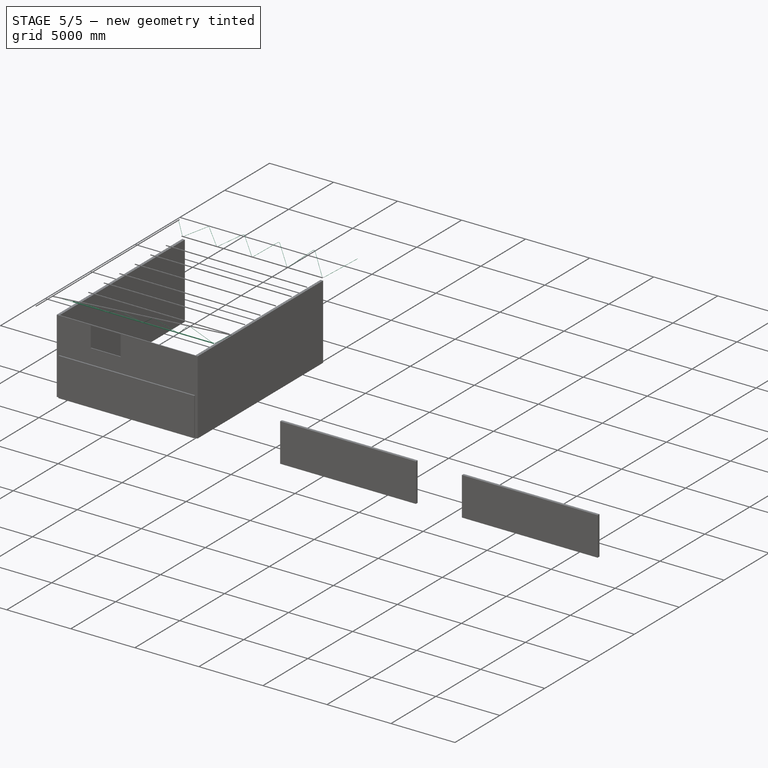
[diagram: stage 5 of 5 — iso view after this stage's code; geometry added in this stage tinted green]
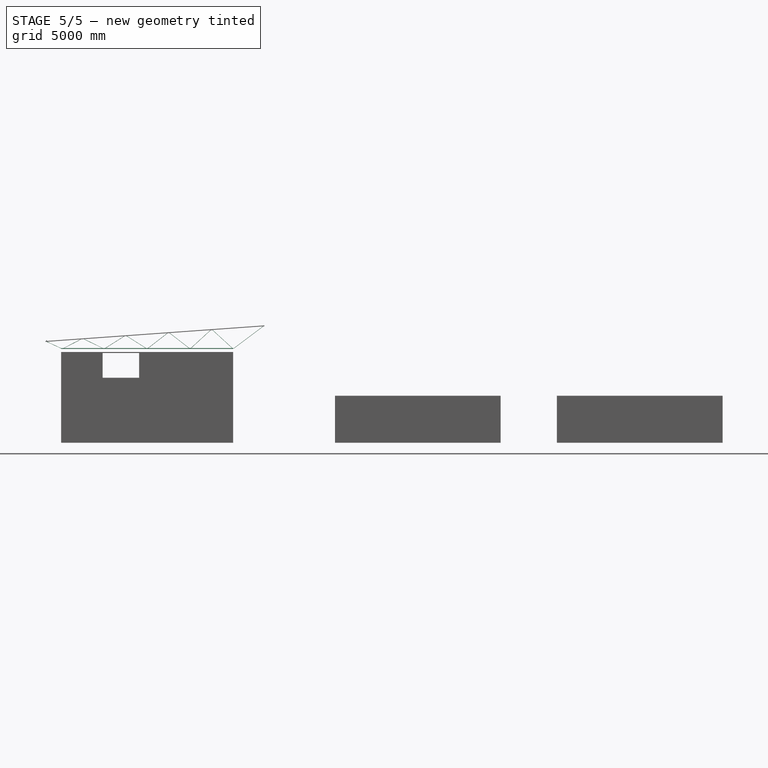
[diagram: stage 5 of 5 — front view after this stage's code; geometry added in this stage tinted green]
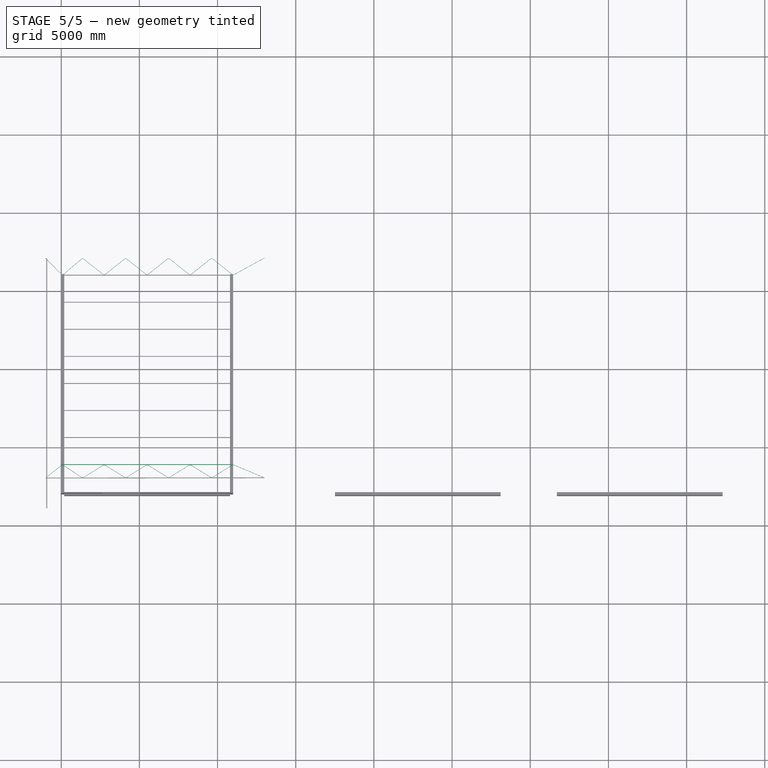
[diagram: stage 5 of 5 — top view after this stage's code; geometry added in this stage tinted green]
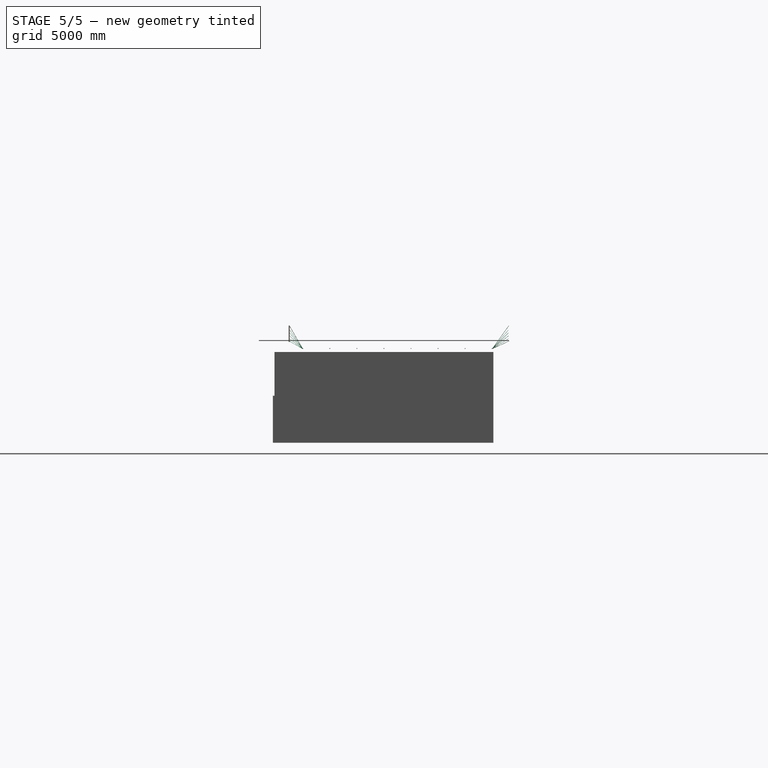
[diagram: stage 5 of 5 — right view after this stage's code; geometry added in this stage tinted green]
FEATURE [Part::FeaturePython] Clone  label="Clone of Extrusion"  # Draft clone (typed FeaturePython)
  AttacherType = Attacher::AttachEngine3D
  Objects = -> [Extrusion]
  Placement = pos=(0,1731.25,0) rot=(0,0,1;0rad)
  Scale = (1,1,1)
FEATURE [Part::Part2DObjectPython] Line031  # Draft 2D object (typed FeaturePython)
  ChamferSize = 0
  Closed = false
  End = (-1005,2050,6000)
  FilletRadius = 0
  Length = 500
  MakeFace = true
  Placement = pos=(0,0,500) rot=(0,0,1;0rad)
  Points = (2) [(-1005,2050,6000),(-1005,2050,5500)]
  Start = (-1005,2050,6500)
  Subdivisions = 0
FEATURE [Part::Part2DObjectPython] Line032  # Draft 2D object (typed FeaturePython)
  ChamferSize = 0
  Closed = false
  End = (12995,2050,6000)
  FilletRadius = 0
  Length = 1500
  MakeFace = true
  Placement = pos=(14000,0,1500) rot=(0,0,1;0rad)
  Points = (2) [(-1005,2050,6000),(-1005,2050,4500)]
  Start = (12995,2050,7500)
  Subdivisions = 0
FEATURE [Part::Part2DObjectPython] Line033  # Draft 2D object (typed FeaturePython)
  ChamferSize = 0
  Closed = false
  End = (12995,2050,7500)
  FilletRadius = 0
  Length = 14035.7
  MakeFace = true
  Points = (2) [(-1005,2050,6500),(12995,2050,7500)]
  Start = (-1005,2050,6500)
  Subdivisions = 0
FEATURE [Part::Part2DObjectPython] Line034  # Draft 2D object (typed FeaturePython)
  ChamferSize = 0
  Closed = false
  End = (12995,2050,7500)
  FilletRadius = 0
  Length = 2500
  MakeFace = true
  Points = (2) [(10995,2050,6000),(12995,2050,7500)]
  Start = (10995,2050,6000)
  Subdivisions = 0
FEATURE [Part::Part2DObjectPython] Line035  # Draft 2D object (typed FeaturePython)
  ChamferSize = 0
  Closed = false
  End = (-1005,2050,6500)
  FilletRadius = 0
  Length = 1118.03
  MakeFace = true
  Points = (2) [(-4.99805,2050,6000),(-1005,2050,6500)]
  Start = (-4.99805,2050,6000)
  Subdivisions = 0
FEATURE [Part::Part2DObjectPython] Rectangle003  # Draft 2D object (typed FeaturePython)
  ChamferSize = 0
  Columns = 1
  FilletRadius = 0
  Height = 16000
  Length = 14000
  MakeFace = true
  Placement = pos=(-1005,1000,6500) rot=(0,-1,0;0.071307rad)
  Rows = 1
FEATURE [Part::Part2DObjectPython] Line036  # Draft 2D object (typed FeaturePython)
  ChamferSize = 0
  Closed = false
  End = (-1005,2940.63,6500)
  FilletRadius = 0
  Length = 14509.3
  MakeFace = true
  Points = (2) [(13467.5,2940.63,7533.75),(-1005,2940.63,6500)]
  Start = (13467.5,2940.63,7533.75)
  Subdivisions = 0
FEATURE [Part::Part2DObjectPython] Line037  # Draft 2D object (typed FeaturePython)
  ChamferSize = 0
  Closed = false
  End = (-1005,4671.88,6500)
  FilletRadius = 0
  Length = 14000
  MakeFace = true
  Placement = pos=(0,1731.25,0) rot=(0,0,1;0rad)
  Points = (2) [(12959.4,2940.63,7497.46),(-1005,2940.63,6500)]
  Start = (12959.4,4671.88,7497.46)
  Subdivisions = 0
FEATURE [Part::Part2DObjectPython] Line038  # Draft 2D object (typed FeaturePython)
  ChamferSize = 0
  Closed = false
  End = (-1005,6403.13,6500)
  FilletRadius = 0
  Length = 14000
  MakeFace = true
  Placement = pos=(0,3462.5,0) rot=(0,0,1;0rad)
  Points = (2) [(12959.4,2940.63,7497.46),(-1005,2940.63,6500)]
  Start = (12959.4,6403.13,7497.46)
  Subdivisions = 0
FEATURE [Part::Part2DObjectPython] Line039  # Draft 2D object (typed FeaturePython)
  ChamferSize = 0
  Closed = false
  End = (-1005,8134.38,6500)
  FilletRadius = 0
  Length = 14000
  MakeFace = true
  Placement = pos=(0,5193.75,0) rot=(0,0,1;0rad)
  Points = (2) [(12959.4,2940.63,7497.46),(-1005,2940.63,6500)]
  Start = (12959.4,8134.38,7497.46)
  Subdivisions = 0
FEATURE [Part::Part2DObjectPython] Line040  # Draft 2D object (typed FeaturePython)
  ChamferSize = 0
  Closed = false
  End = (-1005,9865.63,6500)
  FilletRadius = 0
  Length = 14000
  MakeFace = true
  Placement = pos=(0,6925,0) rot=(0,0,1;0rad)
  Points = (2) [(12959.4,2940.63,7497.46),(-1005,2940.63,6500)]
  Start = (12959.4,9865.63,7497.46)
  Subdivisions = 0
FEATURE [Part::Part2DObjectPython] Line041  # Draft 2D object (typed FeaturePython)
  ChamferSize = 0
  Closed = false
  End = (-1005,11596.9,6500)
  FilletRadius = 0
  Length = 14000
  MakeFace = true
  Placement = pos=(0,8656.25,0) rot=(0,0,1;0rad)
  Points = (2) [(12959.4,2940.63,7497.46),(-1005,2940.63,6500)]
  Start = (12959.4,11596.9,7497.46)
  Subdivisions = 0
FEATURE [Part::Part2DObjectPython] Line042  # Draft 2D object (typed FeaturePython)
  ChamferSize = 0
  Closed = false
  End = (-1005,13328.1,6500)
  FilletRadius = 0
  Length = 14000
  MakeFace = true
  Placement = pos=(0,10387.5,0) rot=(0,0,1;0rad)
  Points = (2) [(12959.4,2940.63,7497.46),(-1005,2940.63,6500)]
  Start = (12959.4,13328.1,7497.46)
  Subdivisions = 0
FEATURE [Part::Part2DObjectPython] Line044  # Draft 2D object (typed FeaturePython)
  ChamferSize = 0
  Closed = false
  End = (-1005,17000,6500)
  FilletRadius = 0
  Length = 14000
  MakeFace = true
  Placement = pos=(0,14059.4,0) rot=(0,0,1;0rad)
  Points = (2) [(12959.4,2940.63,7497.46),(-1005,2940.63,6500)]
  Start = (12959.4,17000,7497.46)
  Subdivisions = 0
FEATURE [Part::Part2DObjectPython] Line045  # Draft 2D object (typed FeaturePython)
  ChamferSize = 0
  Closed = false
  End = (-1005,1000,6500)
  FilletRadius = 0
  Length = 14000
  MakeFace = true
  Placement = pos=(0,-1940.62,0) rot=(0,0,1;0rad)
  Points = (2) [(12959.4,2940.63,7497.46),(-1005,2940.63,6500)]
  Start = (12959.4,1000,7497.46)
  Subdivisions = 0
FEATURE [Part::Part2DObjectPython] Line046  # Draft 2D object (typed FeaturePython)
  ChamferSize = 0
  Closed = false
  End = (12995,380.201,7500)
  FilletRadius = 0
  Length = 2814.2
  MakeFace = true
  Points = (2) [(12995,3194.4,7500),(12995,380.201,7500)]
  Start = (12995,3194.4,7500)
  Subdivisions = 0
  Support = -> [Rectangle003]
FEATURE [Part::Part2DObjectPython] Line047  # Draft 2D object (typed FeaturePython)
  ChamferSize = 0
  Closed = false
  End = (13069.5,1000,7505.32)
  FilletRadius = 0
  Length = 110.337
  MakeFace = true
  Points = (2) [(12959.4,1000,7497.46),(13069.5,1000,7505.32)]
  Start = (12959.4,1000,7497.46)
  Subdivisions = 0
FEATURE [App::DocumentObjectGroup] Construction
  Group = -> [Line,Line001,Line002,Line003,Line004,Line005,Line006,Line007,Line008,Line009,Line010,Line011,Line012,Line013,Line014,Line015,Rectangle001,Line016,Line017,Line018,Line019,Line020,Line021,Line022,Line023,Line024,Line025,Line026,Line027,Line028,Line029,Line030,Dimension,Line036,Line037,Line038,Line039,Line040,Line041,Line042,Line044,Line045,Line046,Line047]
FEATURE [Part::Part2DObjectPython] Rectangle004  # Draft 2D object (typed FeaturePython)
  ChamferSize = 0
  Columns = 1
  FilletRadius = 0
  Height = 16000.2
  Length = 14035.9
  MakeFace = true
  Placement = pos=(-1008.66,1024.9,6549.87) rot=(0,-1,0;0.071307rad)
  Rows = 1
FEATURE [Part::Part2DObjectPython] Rectangle005  # Draft 2D object (typed FeaturePython)
  ChamferSize = 0
  Columns = 8
  FilletRadius = 0
  Height = 16000
  Length = 14035.7
  MakeFace = true
  Placement = pos=(-1005,1000,6500) rot=(0,-1,0;0.071307rad)
  Rows = 1
FEATURE [Part::Part2DObjectPython] Line048  # Draft 2D object (typed FeaturePython)
  ChamferSize = 0
  Closed = false
  End = (-4.99805,2050,7806.17)
  FilletRadius = 0
  Length = 1806.17
  MakeFace = true
  Points = (2) [(-4.99805,2050,6000),(-4.99805,2050,7806.17)]
  Start = (-4.99805,2050,6000)
  Subdivisions = 0
FEATURE [Part::Part2DObjectPython] Rectangle006  # Draft 2D object (typed FeaturePython)
  ChamferSize = 0
  Columns = 8
  FilletRadius = 0
  Height = 1806.17
  Length = 11000
  MakeFace = true
  Placement = pos=(-4.99805,2050,6000) rot=(1,0,0;1.5708rad)
  Rows = 1
FEATURE [Part::Part2DObjectPython] Line050  # Draft 2D object (typed FeaturePython)
  ChamferSize = 0
  Closed = false
  End = (-4.99805,4671.88,6571.43)
  FilletRadius = 0
  Length = 3671.88
  MakeFace = true
  Placement = pos=(-750,0,-53.5714) rot=(0,0,1;0rad)
  Points = (2) [(745.002,1000,6625),(745.002,4671.88,6625)]
  Start = (-4.99805,1000,6571.43)
  Subdivisions = 0
FEATURE [Part::Part2DObjectPython] Line051  # Draft 2D object (typed FeaturePython)
  ChamferSize = 0
  Closed = false
  End = (1370,4671.88,6669.64)
  FilletRadius = 0
  Length = 3671.88
  MakeFace = true
  Placement = pos=(625,0,44.6429) rot=(0,0,1;0rad)
  Points = (2) [(745.002,1000,6625),(745.002,4671.88,6625)]
  Start = (1370,1000,6669.64)
  Subdivisions = 0
FEATURE [Part::Part2DObjectPython] Line052  # Draft 2D object (typed FeaturePython)
  ChamferSize = 0
  Closed = false
  End = (2745,4671.88,6767.86)
  FilletRadius = 0
  Length = 3671.88
  MakeFace = true
  Placement = pos=(2000,0,142.857) rot=(0,0,1;0rad)
  Points = (2) [(745.002,1000,6625),(745.002,4671.88,6625)]
  Start = (2745,1000,6767.86)
  Subdivisions = 0
FEATURE [Part::Part2DObjectPython] Line053  # Draft 2D object (typed FeaturePython)
  ChamferSize = 0
  Closed = false
  End = (4120,4671.88,6866.07)
  FilletRadius = 0
  Length = 3671.88
  MakeFace = true
  Placement = pos=(3375,0,241.071) rot=(0,0,1;0rad)
  Points = (2) [(745.002,1000,6625),(745.002,4671.88,6625)]
  Start = (4120,1000,6866.07)
  Subdivisions = 0
FEATURE [Part::Part2DObjectPython] Line054  # Draft 2D object (typed FeaturePython)
  ChamferSize = 0
  Closed = false
  End = (5495,4671.88,6964.29)
  FilletRadius = 0
  Length = 3671.88
  MakeFace = true
  Placement = pos=(4750,0,339.286) rot=(0,0,1;0rad)
  Points = (2) [(745.002,1000,6625),(745.002,4671.88,6625)]
  Start = (5495,1000,6964.29)
  Subdivisions = 0
FEATURE [Part::Part2DObjectPython] Line055  # Draft 2D object (typed FeaturePython)
  ChamferSize = 0
  Closed = false
  End = (6870,4671.88,7062.5)
  FilletRadius = 0
  Length = 3671.88
  MakeFace = true
  Placement = pos=(6125,0,437.5) rot=(0,0,1;0rad)
  Points = (2) [(745.002,1000,6625),(745.002,4671.88,6625)]
  Start = (6870,1000,7062.5)
  Subdivisions = 0
FEATURE [Part::Part2DObjectPython] Line056  # Draft 2D object (typed FeaturePython)
  ChamferSize = 0
  Closed = false
  End = (8245,4671.88,7160.71)
  FilletRadius = 0
  Length = 3671.88
  MakeFace = true
  Placement = pos=(7500,0,535.714) rot=(0,0,1;0rad)
  Points = (2) [(745.002,1000,6625),(745.002,4671.88,6625)]
  Start = (8245,1000,7160.71)
  Subdivisions = 0
FEATURE [Part::Part2DObjectPython] Line057  # Draft 2D object (typed FeaturePython)
  ChamferSize = 0
  Closed = false
  End = (9620,4671.88,7258.93)
  FilletRadius = 0
  Length = 3671.88
  MakeFace = true
  Placement = pos=(8875,-1e-12,633.929) rot=(0,0,1;0rad)
  Points = (2) [(745.002,1000,6625),(745.002,4671.88,6625)]
  Start = (9620,1000,7258.93)
  Subdivisions = 0
FEATURE [Part::Part2DObjectPython] Line058  # Draft 2D object (typed FeaturePython)
  ChamferSize = 0
  Closed = false
  End = (10995,4671.88,7357.14)
  FilletRadius = 0
  Length = 3671.88
  MakeFace = true
  Placement = pos=(10250,-1e-12,732.143) rot=(0,0,1;0rad)
  Points = (2) [(745.002,1000,6625),(745.002,4671.88,6625)]
  Start = (10995,1000,7357.14)
  Subdivisions = 0
FEATURE [Part::Part2DObjectPython] Rectangle007  # Draft 2D object (typed FeaturePython)
  ChamferSize = 0
  Columns = 8
  FilletRadius = 0
  Height = 1806.17
  Length = 11000
  MakeFace = true
  Placement = pos=(-4.99805,2075,6000) rot=(1,0,0;1.5708rad)
  Rows = 1
FEATURE [Part::Part2DObjectPython] DWire001  # Draft 2D object (typed FeaturePython)
  ChamferSize = 0
  Closed = false
  End = (12995,2940.63,7500)
  FilletRadius = 120
  Length = 18835.4
  MakeFace = true
  Points = (11) [(-1005,2940.63,6500),(70.002,2075,6000),(1370,2940.63,6669.64),(2745,2075,6000),(4120,2940.63,6866.07),(5495,2075,6000),(6870,2940.63,7062.5),+4 more]
  Start = (-1005,2940.63,6500)
  Subdivisions = 0
FEATURE [Part::FeaturePython] Pipe  # WARN: FeaturePython — macro-defined, semantics opaque (R4)
  Base = -> DWire001
  Diameter = 20
  HorizontalArea = 0
  Length = 18835.4
  MoveWithHost = false
  OffsetEnd = 0
  OffsetStart = 0
  PerimeterLength = 0
  Role = 0
  VerticalArea = 0
FEATURE [Part::Mirroring] mirror  label="Mirror of Pipe"
  Base = (-1005,2940.63,6500)
  Normal = (0,1,0)
  Source = -> Pipe
FEATURE [Part::Part2DObjectPython] DWire  # Draft 2D object (typed FeaturePython)
  ChamferSize = 0
  Closed = false
  End = (12995,1000,7500)
  FilletRadius = 120
  Length = 19766.2
  MakeFace = true
  Points = (11) [(-1005,1000,6500),(70.002,2075,6000),(1370,1000,6669.64),(2745,2075,6000),(4120,1000,6866.07),(5495,2075,6000),(6870,1000,7062.5),(8245,2075,6000),+3 more]
  Start = (-1005,1000,6500)
  Subdivisions = 0
FEATURE [Part::FeaturePython] Pipe001  # WARN: FeaturePython — macro-defined, semantics opaque (R4)
  Base = -> DWire
  Diameter = 20
  HorizontalArea = 0
  Length = 19766.2
  MoveWithHost = false
  OffsetEnd = 0
  OffsetStart = 0
  PerimeterLength = 0
  Role = 0
  VerticalArea = 0
FEATURE [Part::Mirroring] mirror001  label="Mirror of Pipe001"
  Base = (-1005,9000,6000)
  Normal = (0,1,0)
  Source = -> Pipe001
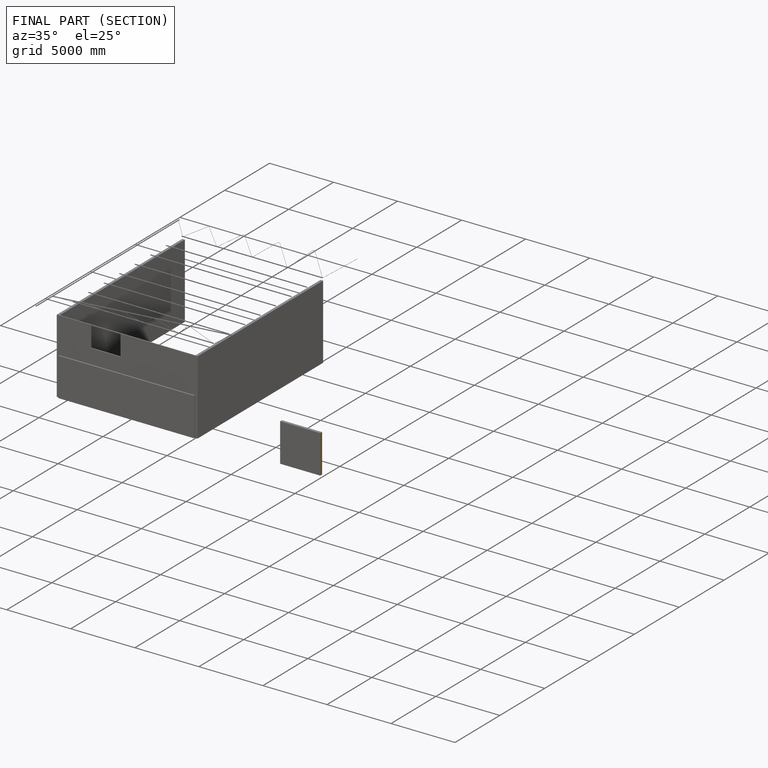
[diagram: finished part — half-section view (interior)]
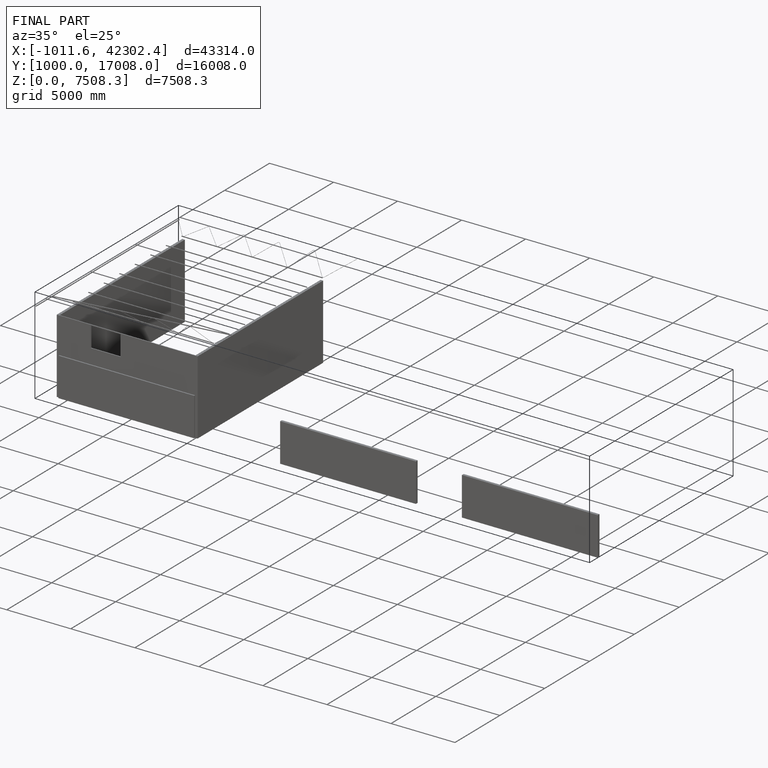
[diagram: finished part — iso view with bounding-box wireframe]
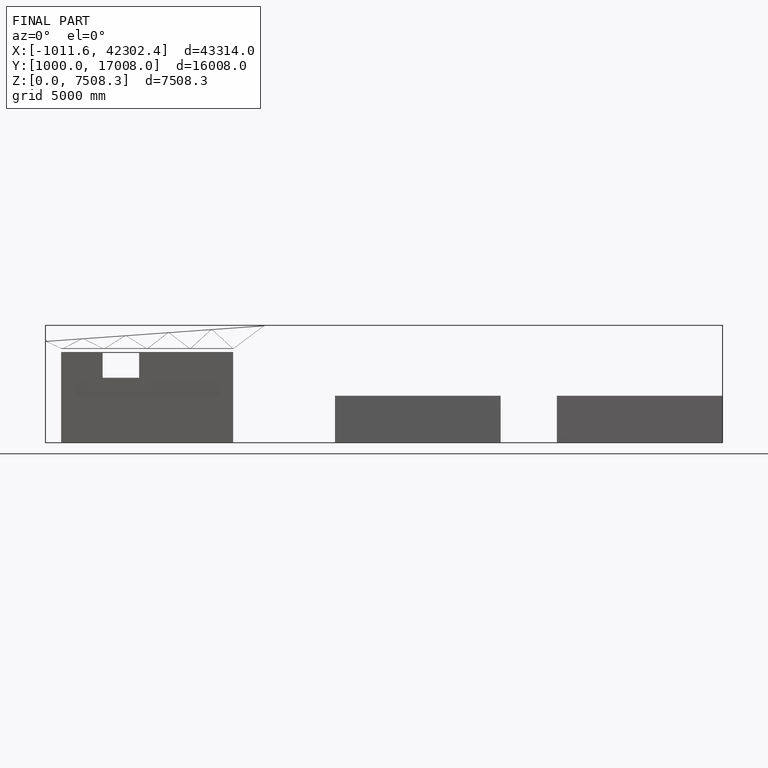
[diagram: finished part — front view with bounding-box wireframe]
